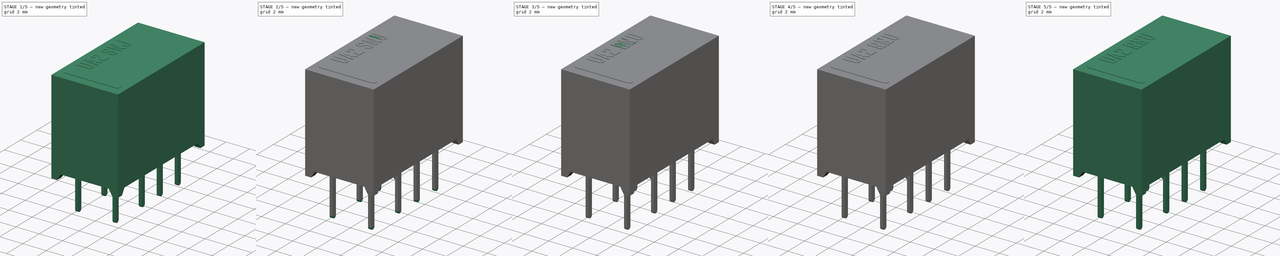
[diagram: build sequence overview — one tinted view per stage of 5, left to right]
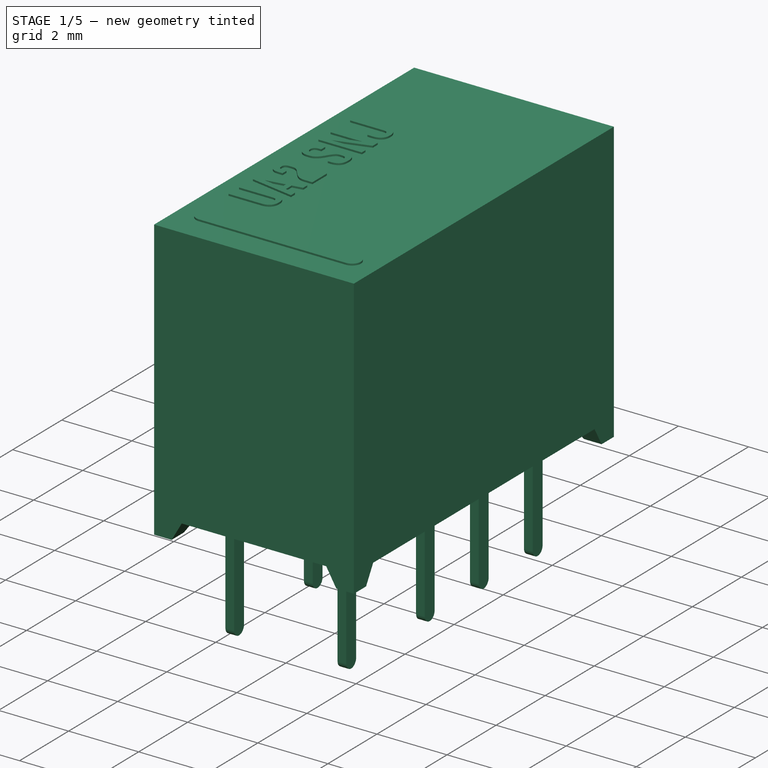
[diagram: stage 1 of 5 — iso view after this stage's code; geometry added in this stage tinted green]
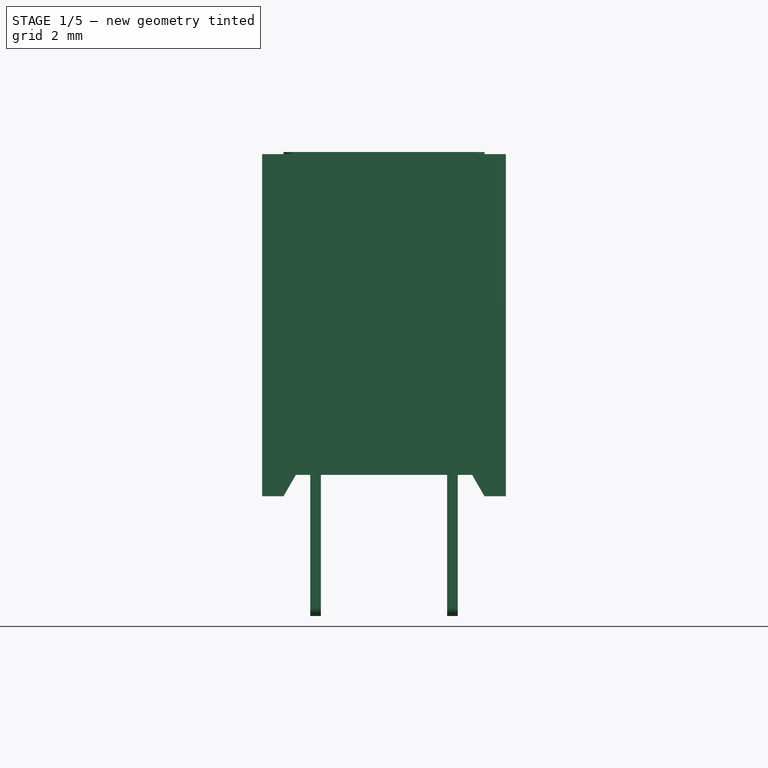
[diagram: stage 1 of 5 — front view after this stage's code; geometry added in this stage tinted green]
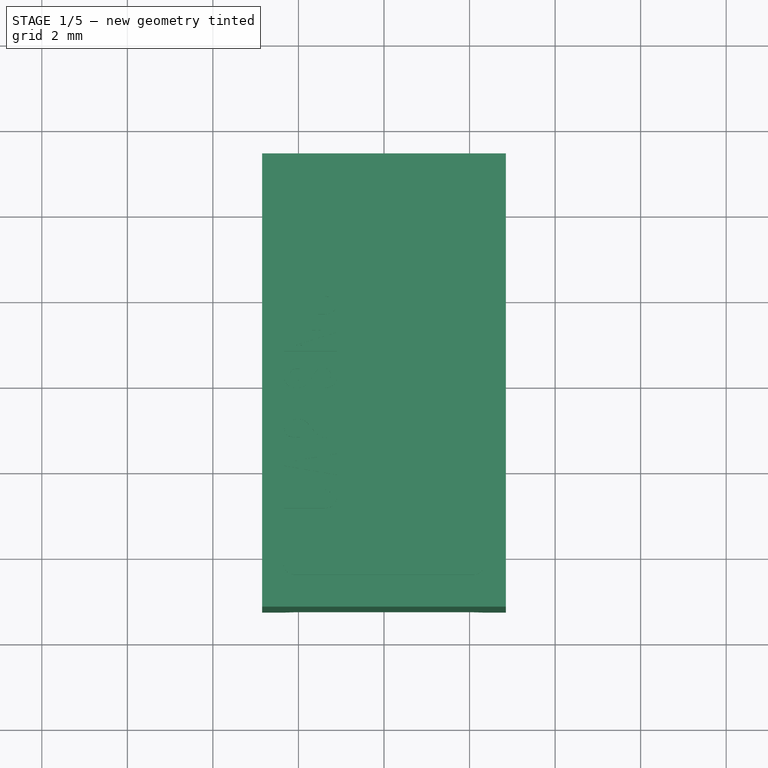
[diagram: stage 1 of 5 — top view after this stage's code; geometry added in this stage tinted green]
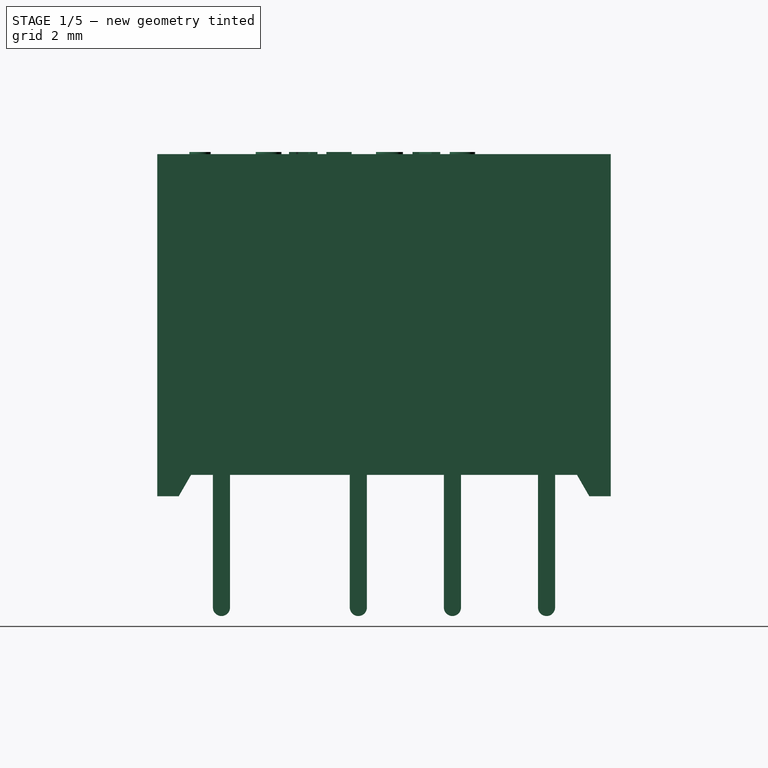
[diagram: stage 1 of 5 — right view after this stage's code; geometry added in this stage tinted green]
FCSTD DOCUMENT  (FreeCAD 0.19R16945 (Git))
Label: Kemet UA2 Series
License: All rights reserved
LicenseURL: http://en.wikipedia.org/wiki/All_rights_reserved
objects: Sketcher::SketchObject×35, PartDesign::Pad×25, PartDesign::Body×25, PartDesign::FeatureBase×20, PartDesign::Pocket×15, PartDesign::Mirrored×10, Part::FeaturePython×10, PartDesign::MultiTransform×5, Part::Part2DObjectPython×5, Part::MultiFuse×5, App::Part×5
note: 195 computed .brp shape members not serialized (recipe doc carries the construction recipe); baked Part::Feature solids carry a one-line shape summary decoded from their .brp

FEATURE [PartDesign::Body] Body017  label="UA2-SNU_Body"
  Group = -> [Sketch036,Pad024,Sketch033,Pocket013,Sketch037,Pocket015,ShapeString003,Sketch039,Pocket014,MultiTransform003,Mirrored006,Mirrored007,Sketch038,Pad026,Sketch035,Pad027,Pad025]
  Origin = -> Origin021
  Tip = -> Pad027
FEATURE [App::Part] Part003  label="UA2-SNU"
  Group = -> [Body017,Sketch034,Pad023,Body019,Body018,Body015,Body016,Array006,Array007,Fusion003]
  Origin = -> Origin019
FEATURE [PartDesign::Mirrored] Mirrored008
  MirrorPlane = -> XZ_Plane024
FEATURE [PartDesign::Mirrored] Mirrored009
  MirrorPlane = -> YZ_Plane025
FEATURE [Sketcher::SketchObject] Sketch040
  MapMode = 5
  Support = -> [XY_Plane027]
  sketch-geometry (4):
    g0: LineSegment StartX=2.85 StartY=-5.3 StartZ=0 EndX=-2.85 EndY=-5.3 EndZ=0
    g1: LineSegment StartX=-2.85 StartY=-5.3 StartZ=0 EndX=-2.85 EndY=5.3 EndZ=0
    g2: LineSegment StartX=-2.85 StartY=5.3 StartZ=0 EndX=2.85 EndY=5.3 EndZ=0
    g3: LineSegment StartX=2.85 StartY=5.3 StartZ=0 EndX=2.85 EndY=-5.3 EndZ=0
  constraints (10):
    c: Coincident(g0,g1)
    c: Coincident(g1,g2)
    c: Coincident(g2,g3)
    c: Coincident(g3,g0)
    c: Horizontal(g0)
    c: Vertical(g1)
    c: Symmetric(g1,g2,g-2)
    c: Symmetric(g2,g0,g-1)
    c: DistanceX(g2,g2) = 5.7
    c: DistanceY(g3,g3) = 10.6
FEATURE [PartDesign::Pad] Pad030  label="MainPad004"
  Length = 8
  Length2 = 100
  Profile = -> Sketch040
  Type = 0
FEATURE [Sketcher::SketchObject] Sketch042
  ExternalGeometry = -> [Pad030]
  MapMode = 5
  Placement = pos=(-2.85,0,0) rot=(0.57735,-0.57735,-0.57735;2.0944rad)
  Support = -> [Pad030]
  sketch-geometry (4):
    g0: LineSegment StartX=-4.8 StartY=0 StartZ=0 EndX=-4.51132 EndY=0.5 EndZ=0
    g1: LineSegment StartX=-4.51132 StartY=0.5 StartZ=0 EndX=4.51132 EndY=0.5 EndZ=0
    g2: LineSegment StartX=4.51132 StartY=0.5 StartZ=0 EndX=4.8 EndY=0 EndZ=0
    g3: LineSegment StartX=-4.8 StartY=0 StartZ=0 EndX=4.8 EndY=0 EndZ=0
  constraints (11):
    c: PointOnObject(g0,g-1)
    c: Coincident(g0,g1)
    c: Horizontal(g1)
    c: Coincident(g1,g2)
    c: Coincident(g3,g0)
    c: Coincident(g3,g2)
    c: DistanceY(g0,g0) = 0.5
    c: DistanceX(g-3,g0) = 0.5
    c: Symmetric(g2,g0,g-2)
    c: Angle(g3,g0) = 1.0472
    c: Equal(g2,g0)
FEATURE [PartDesign::Pocket] Pocket018  label="BottomPocket004"
  BaseFeature = -> Pad030
  Length = 5
  Length2 = 100
  Profile = -> Sketch042
  Refine = true
  Type = 1
FEATURE [Sketcher::SketchObject] Sketch043
  AttachmentOffset = pos=(0,0,2.54) rot=(0,0,1;0rad)
  MapMode = 5
  Placement = pos=(1.6,-1e-15,1e-15) rot=(0.57735,0.57735,0.57735;2.0944rad)
  sketch-geometry (6):
    g0: ArcOfCircle CenterX=0 CenterY=-2.6 CenterZ=0 NormalX=0 NormalY=0 NormalZ=1 AngleXU=0 Radius=0.2 StartAngle=3.14159 EndAngle=6.28319
    g1: LineSegment StartX=-0.2 StartY=-2.6 StartZ=0 EndX=-0.2 EndY=0.5 EndZ=0
    g2: LineSegment StartX=-0.2 StartY=0.5 StartZ=0 EndX=0.2 EndY=0.5 EndZ=0
    g3: LineSegment StartX=0.2 StartY=0.5 StartZ=0 EndX=0.2 EndY=-2.6 EndZ=0
    g4: GeomPoint X=-0.2 Y=0 Z=0
    g5: GeomPoint X=0 Y=-2.8 Z=0
  constraints (16):
    c: Tangent(g0,g1) = 1.5708
    c: Coincident(g1,g2)
    c: Coincident(g2,g3)
    c: Coincident(g3,g0)
    c: Vertical(g3)
    c: Equal(g3,g1)
    c: Vertical(g1)
    c: Horizontal(g2)
    c: PointOnObject(g4,g1)
    c: PointOnObject(g4,g-1)
    c: DistanceY(g4,g1) = 0.5
    c: DistanceX(g0,g0) = 0.4
    c: PointOnObject(g5,g0)
    c: Vertical(g5,g0)
    c: DistanceY(g5,g-1) = 2.8
    c: PointOnObject(g0,g-2)
FEATURE [PartDesign::Pad] Pad029
  Length = 0.25
  Length2 = 100
  Midplane = true
  Placement = pos=(1.6,-1e-15,1e-15) rot=(0.57735,0.57735,0.57735;2.0944rad)
  Profile = -> Sketch043
  Reversed = true
  Type = 0
FEATURE [PartDesign::FeatureBase] Clone016
  BaseFeature = -> Pad029
  Placement = pos=(1.6,-1e-15,1e-15) rot=(0.57735,0.57735,0.57735;2.0944rad)
FEATURE [PartDesign::Body] Body020
  BaseFeature = -> Pad029
  Group = -> [Clone016]
  Origin = -> Origin025
  Placement = pos=(0,-3.8,0) rot=(0,0,1;0rad)
  Tip = -> Clone016
FEATURE [PartDesign::FeatureBase] Clone018
  BaseFeature = -> Body020
  Placement = pos=(0,-3.8,0) rot=(0,0,1;0rad)
FEATURE [PartDesign::FeatureBase] Clone019
  BaseFeature = -> Body020
  Placement = pos=(0,-3.8,0) rot=(0,0,1;0rad)
FEATURE [PartDesign::Body] Body022
  BaseFeature = -> Body020
  Group = -> [Clone018]
  Origin = -> Origin029
  Placement = pos=(0,3.2,0) rot=(0,0,1;0rad)
  Tip = -> Clone018
FEATURE [PartDesign::Body] Body023
  BaseFeature = -> Body020
  Group = -> [Clone019]
  Origin = -> Origin028
  Placement = pos=(-3.2,0,0) rot=(0,0,1;0rad)
  Tip = -> Clone019
FEATURE [PartDesign::FeatureBase] Clone017
  BaseFeature = -> Body023
  Placement = pos=(-3.2,0,0) rot=(0,0,1;0rad)
FEATURE [PartDesign::Body] Body021
  BaseFeature = -> Body023
  Group = -> [Clone017]
  Origin = -> Origin026
  Placement = pos=(0,3.2,0) rot=(0,0,1;0rad)
  Tip = -> Clone017
FEATURE [Part::FeaturePython] Array008  # Draft array (typed FeaturePython)
  Angle = 360
  ArrayType = 0
  Axis = (0,0,1)
  Base = -> Body021
  Center = (0,0,0)
  Fuse = false
  IntervalAxis = (0,0,0)
  IntervalX = (1,0,0)
  IntervalY = (0,2.2,0)
  IntervalZ = (0,0,1)
  NumberPolar = 1
  NumberX = 1
  NumberY = 3
  NumberZ = 1
FEATURE [Part::FeaturePython] Array009  # Draft array (typed FeaturePython)
  Angle = 360
  ArrayType = 0
  Axis = (0,0,1)
  Base = -> Body022
  Center = (0,0,0)
  Fuse = false
  IntervalAxis = (0,0,0)
  IntervalX = (1,0,0)
  IntervalY = (0,2.2,0)
  IntervalZ = (0,0,1)
  NumberPolar = 1
  NumberX = 1
  NumberY = 3
  NumberZ = 1
FEATURE [Part::MultiFuse] Fusion004  label="UA2-SNJ_Pads"
  Shapes = -> [Array009,Array008,Body020,Body023]
FEATURE [Sketcher::SketchObject] Sketch045
  ExternalGeometry = -> [Pocket018]
  MapMode = 5
  Placement = pos=(0,-5.3,0) rot=(1,0,0;1.5708rad)
  Support = -> [Pocket018]
  sketch-geometry (4):
    g0: LineSegment StartX=-2.35 StartY=0 StartZ=0 EndX=-2.06132 EndY=0.5 EndZ=0
    g1: LineSegment StartX=-2.06132 StartY=0.5 StartZ=0 EndX=2.06132 EndY=0.5 EndZ=0
    g2: LineSegment StartX=2.06132 StartY=0.5 StartZ=0 EndX=2.35 EndY=0 EndZ=0
    g3: LineSegment StartX=2.35 StartY=0 StartZ=0 EndX=-2.35 EndY=0 EndZ=0
  constraints (11):
    c: PointOnObject(g0,g-1)
    c: Coincident(g0,g1)
    c: Coincident(g1,g2)
    c: Coincident(g2,g3)
    c: Coincident(g3,g0)
    c: Symmetric(g1,g0,g-2)
    c: Symmetric(g0,g2,g-2)
    c: DistanceX(g-3,g0) = 0.5
    c: Angle(g3,g0) = 1.0472
    c: Equal(g2,g0)
    c: DistanceY(g0,g0) = 0.5
FEATURE [PartDesign::Pocket] Pocket016  label="BottomSidePocket004"
  BaseFeature = -> Pocket018
  Length = 5
  Length2 = 100
  Profile = -> Sketch045
  Refine = true
  Type = 1
FEATURE [Sketcher::SketchObject] Sketch046
  ExternalGeometry = -> [Pocket016,Sketch045]
  MapMode = 5
  Placement = pos=(0,0,0.5) rot=(1,0,0;3.14159rad)
  Support = -> [Pocket016]
  sketch-geometry (6):
    g0: LineSegment StartX=0 StartY=0 StartZ=0 EndX=-2.65 EndY=0 EndZ=0
    g1: LineSegment StartX=-2.65 StartY=0 StartZ=0 EndX=-2.65 EndY=4.31132 EndZ=0
    g2: LineSegment StartX=-2.65 StartY=4.31132 StartZ=0 EndX=-1.86132 EndY=4.31132 EndZ=0
    g3: LineSegment StartX=-1.86132 StartY=4.31132 StartZ=0 EndX=-1.86132 EndY=5.1 EndZ=0
    g4: LineSegment StartX=-1.86132 StartY=5.1 StartZ=0 EndX=0 EndY=5.1 EndZ=0
    g5: LineSegment StartX=0 StartY=5.1 StartZ=0 EndX=0 EndY=0 EndZ=0
  constraints (17):
    c: Horizontal(g0)
    c: Coincident(g0,g1)
    c: Vertical(g1)
    c: Coincident(g1,g2)
    c: Coincident(g2,g3)
    c: Vertical(g3)
    c: Coincident(g3,g4)
    c: Horizontal(g4)
    c: Coincident(g4,g5)
    c: Coincident(g5,g0)
    c: Vertical(g5)
    c: Horizontal(g2)
    c: Coincident(g0,g-1)
    c: DistanceX(g-4,g0) = 0.2
    c: DistanceY(g4,g-6) = 0.2
    c: DistanceX(g-5,g3) = 0.2
    c: DistanceY(g1,g-4) = 0.2
FEATURE [PartDesign::Pocket] Pocket017
  BaseFeature = -> Pocket016
  Length = 0.1
  Length2 = 100
  Profile = -> Sketch046
  Type = 0
FEATURE [PartDesign::MultiTransform] MultiTransform004
  BaseFeature = -> Pocket017
  Originals = -> [Pocket017]
  Refine = true
  Transformations = -> [Mirrored009,Mirrored008]
FEATURE [Sketcher::SketchObject] Sketch041
  MapMode = 5
  Placement = pos=(-1e-16,-1e-16,0.6) rot=(1,0,0;3.14159rad)
  Support = -> [MultiTransform004]
  sketch-geometry (8):
    g0: LineSegment StartX=-1.13646 StartY=2.94894 StartZ=0 EndX=1.09204 EndY=2.88853 EndZ=0
    g1: LineSegment StartX=1.48768 StartY=2.48729 StartZ=0 EndX=1.5531 EndY=-2.52307 EndZ=0
    g2: LineSegment StartX=1.14644 StartY=-2.93509 StartZ=0 EndX=-1.14748 EndY=-2.93509 EndZ=0
    g3: LineSegment StartX=-1.55418 StartY=-2.52838 StartZ=0 EndX=-1.55418 EndY=2.54239 EndZ=0
    g4: ArcOfCircle CenterX=1.08102 CenterY=2.48198 CenterZ=0 NormalX=0 NormalY=0 NormalZ=1 AngleXU=0 Radius=0.406703 StartAngle=0.013056 EndAngle=1.54369
    g5: ArcOfCircle CenterX=-1.14748 CenterY=2.54239 CenterZ=0 NormalX=0 NormalY=0 NormalZ=1 AngleXU=0 Radius=0.406703 StartAngle=1.54369 EndAngle=3.14159
    g6: ArcOfCircle CenterX=-1.14748 CenterY=-2.52838 CenterZ=0 NormalX=0 NormalY=0 NormalZ=1 AngleXU=0 Radius=0.406703 StartAngle=3.14159 EndAngle=4.71239
    g7: ArcOfCircle CenterX=1.14644 CenterY=-2.52838 CenterZ=0 NormalX=0 NormalY=0 NormalZ=1 AngleXU=0 Radius=0.406703 StartAngle=4.71239 EndAngle=6.29624
  constraints (13):
    c: Horizontal(g2)
    c: Vertical(g3)
    c: Tangent(g0,g4) = 1.5708
    c: Tangent(g1,g4) = 1.5708
    c: Tangent(g0,g5) = 1.5708
    c: Tangent(g3,g5) = 1.5708
    c: Tangent(g2,g6) = 1.5708
    c: Tangent(g3,g6) = 1.5708
    c: Tangent(g1,g7) = 1.5708
    c: Tangent(g2,g7) = 1.5708
    c: Equal(g4,g5)
    c: Equal(g5,g6)
    c: Equal(g6,g7)
FEATURE [PartDesign::Pad] Pad031
  BaseFeature = -> MultiTransform004
  Length = 0.05
  Length2 = 100
  Profile = -> Sketch041
  Type = 0
FEATURE [Sketcher::SketchObject] Sketch044
  ExternalGeometry = -> [Pad031]
  MapMode = 5
  Placement = pos=(0,0,8) rot=(0,0,1;0rad)
  Support = -> [Pad031]
  sketch-geometry (4):
    g0: ArcOfCircle CenterX=-2.1 CenterY=-4.3 CenterZ=0 NormalX=0 NormalY=0 NormalZ=1 AngleXU=0 Radius=0.25 StartAngle=1.5708 EndAngle=4.71239
    g1: ArcOfCircle CenterX=2.1 CenterY=-4.3 CenterZ=0 NormalX=0 NormalY=0 NormalZ=1 AngleXU=0 Radius=0.25 StartAngle=4.71239 EndAngle=7.85398
    g2: LineSegment StartX=-2.1 StartY=-4.55 StartZ=0 EndX=2.1 EndY=-4.55 EndZ=0
    g3: LineSegment StartX=-2.1 StartY=-4.05 StartZ=0 EndX=2.1 EndY=-4.05 EndZ=0
  constraints (9):
    c: Tangent(g0,g3) = 1.5708
    c: Tangent(g0,g2) = -1.5708
    c: Tangent(g2,g1) = -1.5708
    c: Tangent(g3,g1) = 1.5708
    c: Horizontal(g2)
    c: Symmetric(g0,g1,g-2)
    c: DistanceY(g1,g1) = 0.5
    c: DistanceY(g-3,g1) = 1
    c: DistanceX(g1,g-3) = 0.75
FEATURE [PartDesign::Pad] Pad032
  BaseFeature = -> Pad031
  Length = 0.05
  Length2 = 100
  Profile = -> Sketch044
  Type = 0
FEATURE [Part::Part2DObjectPython] ShapeString004  # Draft 2D object (typed FeaturePython)
  AttachmentOffset = pos=(-1,-1,0) rot=(0,0,1;-1.5708rad)
  FontFile = <userpath>/Desktop/GitHub/freecad-projects/00-fonts/coolvetica condensed rg.ttf
  MapMode = 6
  Placement = pos=(-1.1,-3.05,8) rot=(0,0,-1;4.71239rad)
  Size = 0.75
  String = UA2 SNJ
  Support = -> [Pad032]
  Tracking = 0.125
FEATURE [PartDesign::Pad] Pad028  label="ShapeStringPad004"
  BaseFeature = -> Pad032
  Length = 0.05
  Length2 = 100
  Profile = -> ShapeString004
  Type = 0
FEATURE [PartDesign::Body] Body024  label="UA2-SNJ_Body"
  Group = -> [Sketch040,Pad030,Sketch042,Pocket018,Sketch045,Pocket016,ShapeString004,Sketch046,Pocket017,MultiTransform004,Mirrored009,Mirrored008,Sketch041,Pad031,Sketch044,Pad032,Pad028]
  Origin = -> Origin027
  Tip = -> Pad032
FEATURE [App::Part] Part004  label="UA2-SNJ"
  Group = -> [Body024,Sketch043,Pad029,Body020,Body023,Body022,Body021,Array009,Array008,Fusion004]
  Origin = -> Origin024
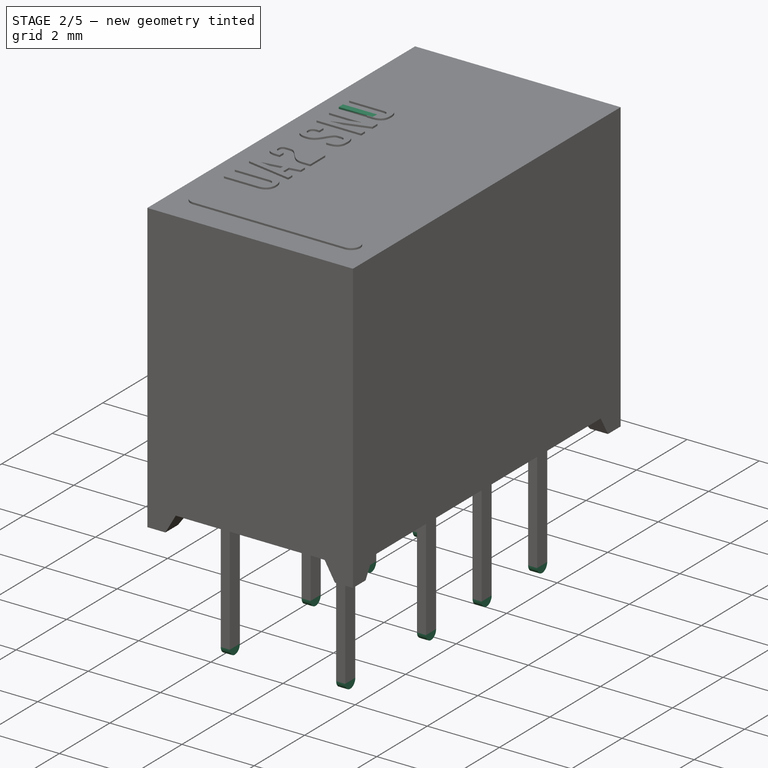
[diagram: stage 2 of 5 — iso view after this stage's code; geometry added in this stage tinted green]
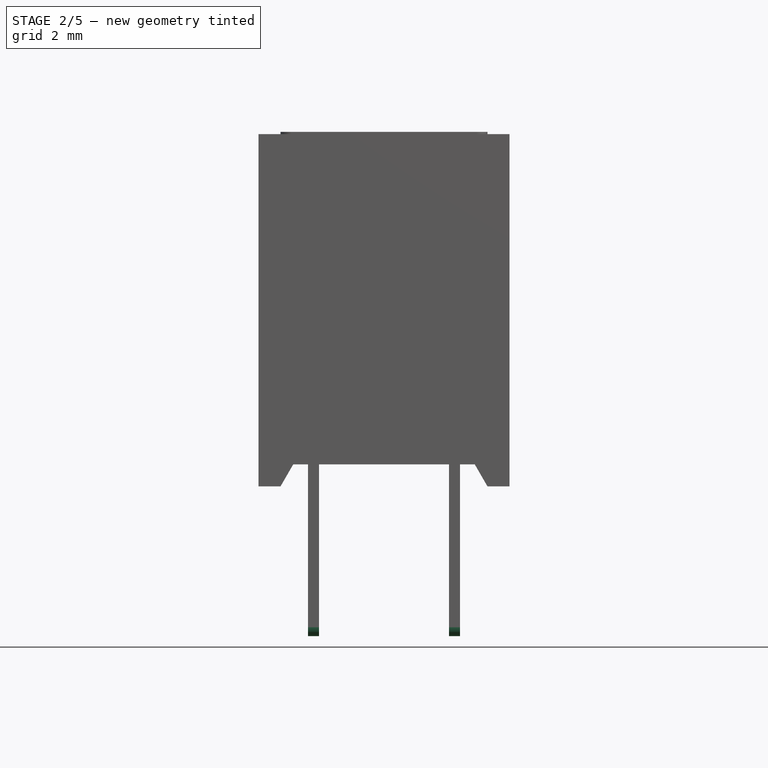
[diagram: stage 2 of 5 — front view after this stage's code; geometry added in this stage tinted green]
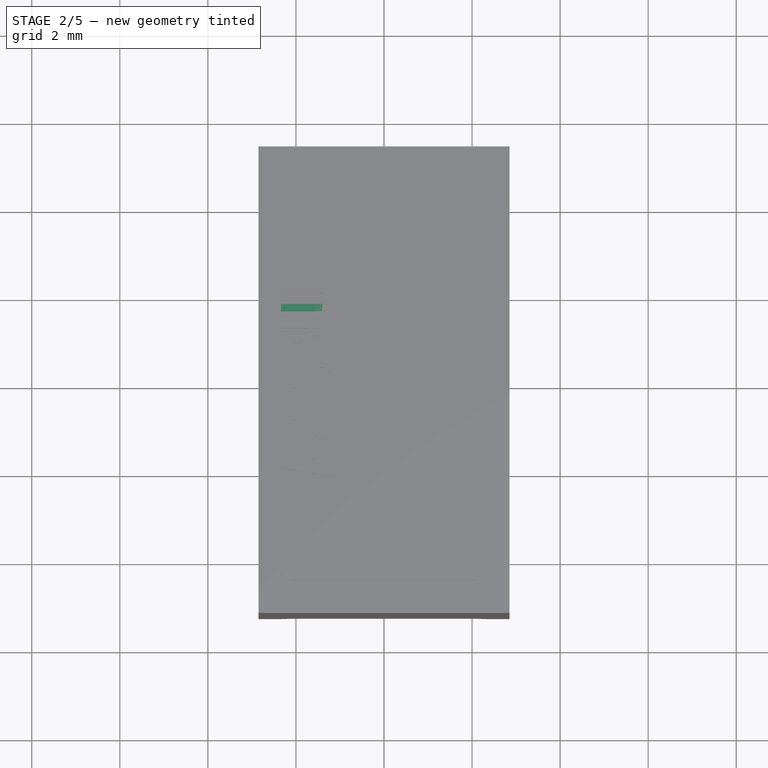
[diagram: stage 2 of 5 — top view after this stage's code; geometry added in this stage tinted green]
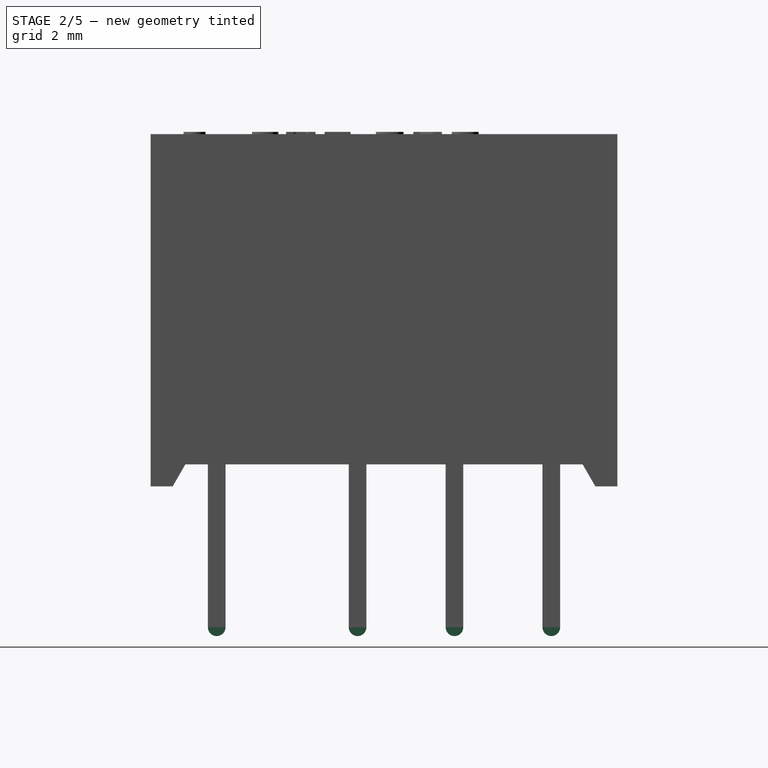
[diagram: stage 2 of 5 — right view after this stage's code; geometry added in this stage tinted green]
FEATURE [PartDesign::Body] Body012  label="UA2-NJ_Body"
  Group = -> [Sketch029,Pad019,Sketch026,Pocket010,Sketch030,Pocket012,ShapeString002,Sketch032,Pocket011,MultiTransform002,Mirrored004,Mirrored005,Sketch031,Pad021,Sketch028,Pad022,Pad020]
  Origin = -> Origin015
  Tip = -> Pad022
FEATURE [App::Part] Part002  label="UA2-NJ"
  Group = -> [Body012,Sketch027,Pad018,Body014,Body013,Body010,Body011,Array004,Array005,Fusion002]
  Origin = -> Origin013
FEATURE [PartDesign::Mirrored] Mirrored006
  MirrorPlane = -> YZ_Plane022
FEATURE [PartDesign::Mirrored] Mirrored007
  MirrorPlane = -> XZ_Plane022
FEATURE [Sketcher::SketchObject] Sketch034
  AttachmentOffset = pos=(0,0,2.54) rot=(0,0,1;0rad)
  MapMode = 5
  Placement = pos=(1.6,-1e-15,1e-15) rot=(0.57735,0.57735,0.57735;2.0944rad)
  sketch-geometry (6):
    g0: ArcOfCircle CenterX=0 CenterY=-3.2 CenterZ=0 NormalX=0 NormalY=0 NormalZ=1 AngleXU=0 Radius=0.2 StartAngle=3.14159 EndAngle=6.28319
    g1: LineSegment StartX=-0.2 StartY=-3.2 StartZ=0 EndX=-0.2 EndY=0.5 EndZ=0
    g2: LineSegment StartX=-0.2 StartY=0.5 StartZ=0 EndX=0.2 EndY=0.5 EndZ=0
    g3: LineSegment StartX=0.2 StartY=0.5 StartZ=0 EndX=0.2 EndY=-3.2 EndZ=0
    g4: GeomPoint X=-0.2 Y=0 Z=0
    g5: GeomPoint X=0 Y=-3.4 Z=0
  constraints (16):
    c: Tangent(g0,g1) = 1.5708
    c: Coincident(g1,g2)
    c: Coincident(g2,g3)
    c: Coincident(g3,g0)
    c: Vertical(g3)
    c: Equal(g3,g1)
    c: Vertical(g1)
    c: Horizontal(g2)
    c: PointOnObject(g4,g1)
    c: PointOnObject(g4,g-1)
    c: DistanceY(g4,g1) = 0.5
    c: DistanceX(g0,g0) = 0.4
    c: PointOnObject(g5,g0)
    c: Vertical(g5,g0)
    c: DistanceY(g5,g-1) = 3.4
    c: PointOnObject(g0,g-2)
FEATURE [PartDesign::Pad] Pad023
  Length = 0.25
  Length2 = 100
  Midplane = true
  Placement = pos=(1.6,-1e-15,1e-15) rot=(0.57735,0.57735,0.57735;2.0944rad)
  Profile = -> Sketch034
  Reversed = true
  Type = 0
FEATURE [PartDesign::FeatureBase] Clone013
  BaseFeature = -> Pad023
  Placement = pos=(1.6,-1e-15,1e-15) rot=(0.57735,0.57735,0.57735;2.0944rad)
FEATURE [PartDesign::Body] Body019
  BaseFeature = -> Pad023
  Group = -> [Clone013]
  Origin = -> Origin018
  Placement = pos=(0,-3.8,0) rot=(0,0,1;0rad)
  Tip = -> Clone013
FEATURE [PartDesign::FeatureBase] Clone012
  BaseFeature = -> Body019
  Placement = pos=(0,-3.8,0) rot=(0,0,1;0rad)
FEATURE [PartDesign::Body] Body015
  BaseFeature = -> Body019
  Group = -> [Clone012]
  Origin = -> Origin020
  Placement = pos=(0,3.2,0) rot=(0,0,1;0rad)
  Tip = -> Clone012
FEATURE [Part::FeaturePython] Array006  # Draft array (typed FeaturePython)
  Angle = 360
  ArrayType = 0
  Axis = (0,0,1)
  Base = -> Body015
  Center = (0,0,0)
  Fuse = false
  IntervalAxis = (0,0,0)
  IntervalX = (1,0,0)
  IntervalY = (0,2.2,0)
  IntervalZ = (0,0,1)
  NumberPolar = 1
  NumberX = 1
  NumberY = 3
  NumberZ = 1
FEATURE [PartDesign::FeatureBase] Clone014
  BaseFeature = -> Body019
  Placement = pos=(0,-3.8,0) rot=(0,0,1;0rad)
FEATURE [PartDesign::Body] Body018
  BaseFeature = -> Body019
  Group = -> [Clone014]
  Origin = -> Origin022
  Placement = pos=(-3.2,0,0) rot=(0,0,1;0rad)
  Tip = -> Clone014
FEATURE [PartDesign::FeatureBase] Clone015
  BaseFeature = -> Body018
  Placement = pos=(-3.2,0,0) rot=(0,0,1;0rad)
FEATURE [PartDesign::Body] Body016
  BaseFeature = -> Body018
  Group = -> [Clone015]
  Origin = -> Origin023
  Placement = pos=(0,3.2,0) rot=(0,0,1;0rad)
  Tip = -> Clone015
FEATURE [Part::FeaturePython] Array007  # Draft array (typed FeaturePython)
  Angle = 360
  ArrayType = 0
  Axis = (0,0,1)
  Base = -> Body016
  Center = (0,0,0)
  Fuse = false
  IntervalAxis = (0,0,0)
  IntervalX = (1,0,0)
  IntervalY = (0,2.2,0)
  IntervalZ = (0,0,1)
  NumberPolar = 1
  NumberX = 1
  NumberY = 3
  NumberZ = 1
FEATURE [Part::MultiFuse] Fusion003  label="UA2-SNU_Pads"
  Shapes = -> [Array006,Array007,Body019,Body018]
FEATURE [Sketcher::SketchObject] Sketch036
  MapMode = 5
  Support = -> [XY_Plane022]
  sketch-geometry (4):
    g0: LineSegment StartX=2.85 StartY=-5.3 StartZ=0 EndX=-2.85 EndY=-5.3 EndZ=0
    g1: LineSegment StartX=-2.85 StartY=-5.3 StartZ=0 EndX=-2.85 EndY=5.3 EndZ=0
    g2: LineSegment StartX=-2.85 StartY=5.3 StartZ=0 EndX=2.85 EndY=5.3 EndZ=0
    g3: LineSegment StartX=2.85 StartY=5.3 StartZ=0 EndX=2.85 EndY=-5.3 EndZ=0
  constraints (10):
    c: Coincident(g0,g1)
    c: Coincident(g1,g2)
    c: Coincident(g2,g3)
    c: Coincident(g3,g0)
    c: Horizontal(g0)
    c: Vertical(g1)
    c: Symmetric(g1,g2,g-2)
    c: Symmetric(g2,g0,g-1)
    c: DistanceX(g2,g2) = 5.7
    c: DistanceY(g3,g3) = 10.6
FEATURE [PartDesign::Pad] Pad024  label="MainPad003"
  Length = 8
  Length2 = 100
  Profile = -> Sketch036
  Type = 0
FEATURE [Sketcher::SketchObject] Sketch033
  ExternalGeometry = -> [Pad024]
  MapMode = 5
  Placement = pos=(-2.85,0,0) rot=(0.57735,-0.57735,-0.57735;2.0944rad)
  Support = -> [Pad024]
  sketch-geometry (4):
    g0: LineSegment StartX=-4.8 StartY=0 StartZ=0 EndX=-4.51132 EndY=0.5 EndZ=0
    g1: LineSegment StartX=-4.51132 StartY=0.5 StartZ=0 EndX=4.51132 EndY=0.5 EndZ=0
    g2: LineSegment StartX=4.51132 StartY=0.5 StartZ=0 EndX=4.8 EndY=0 EndZ=0
    g3: LineSegment StartX=-4.8 StartY=0 StartZ=0 EndX=4.8 EndY=0 EndZ=0
  constraints (11):
    c: PointOnObject(g0,g-1)
    c: Coincident(g0,g1)
    c: Horizontal(g1)
    c: Coincident(g1,g2)
    c: Coincident(g3,g0)
    c: Coincident(g3,g2)
    c: DistanceY(g0,g0) = 0.5
    c: DistanceX(g-3,g0) = 0.5
    c: Symmetric(g2,g0,g-2)
    c: Angle(g3,g0) = 1.0472
    c: Equal(g2,g0)
FEATURE [PartDesign::Pocket] Pocket013  label="BottomPocket003"
  BaseFeature = -> Pad024
  Length = 5
  Length2 = 100
  Profile = -> Sketch033
  Refine = true
  Type = 1
FEATURE [Sketcher::SketchObject] Sketch037
  ExternalGeometry = -> [Pocket013]
  MapMode = 5
  Placement = pos=(0,-5.3,0) rot=(1,0,0;1.5708rad)
  Support = -> [Pocket013]
  sketch-geometry (4):
    g0: LineSegment StartX=-2.35 StartY=0 StartZ=0 EndX=-2.06132 EndY=0.5 EndZ=0
    g1: LineSegment StartX=-2.06132 StartY=0.5 StartZ=0 EndX=2.06132 EndY=0.5 EndZ=0
    g2: LineSegment StartX=2.06132 StartY=0.5 StartZ=0 EndX=2.35 EndY=0 EndZ=0
    g3: LineSegment StartX=2.35 StartY=0 StartZ=0 EndX=-2.35 EndY=0 EndZ=0
  constraints (11):
    c: PointOnObject(g0,g-1)
    c: Coincident(g0,g1)
    c: Coincident(g1,g2)
    c: Coincident(g2,g3)
    c: Coincident(g3,g0)
    c: Symmetric(g1,g0,g-2)
    c: Symmetric(g0,g2,g-2)
    c: DistanceX(g-3,g0) = 0.5
    c: Angle(g3,g0) = 1.0472
    c: Equal(g2,g0)
    c: DistanceY(g0,g0) = 0.5
FEATURE [PartDesign::Pocket] Pocket015  label="BottomSidePocket003"
  BaseFeature = -> Pocket013
  Length = 5
  Length2 = 100
  Profile = -> Sketch037
  Refine = true
  Type = 1
FEATURE [Sketcher::SketchObject] Sketch039
  ExternalGeometry = -> [Pocket015,Sketch037]
  MapMode = 5
  Placement = pos=(0,0,0.5) rot=(1,0,0;3.14159rad)
  Support = -> [Pocket015]
  sketch-geometry (6):
    g0: LineSegment StartX=0 StartY=0 StartZ=0 EndX=-2.65 EndY=0 EndZ=0
    g1: LineSegment StartX=-2.65 StartY=0 StartZ=0 EndX=-2.65 EndY=4.31132 EndZ=0
    g2: LineSegment StartX=-2.65 StartY=4.31132 StartZ=0 EndX=-1.86132 EndY=4.31132 EndZ=0
    g3: LineSegment StartX=-1.86132 StartY=4.31132 StartZ=0 EndX=-1.86132 EndY=5.1 EndZ=0
    g4: LineSegment StartX=-1.86132 StartY=5.1 StartZ=0 EndX=0 EndY=5.1 EndZ=0
    g5: LineSegment StartX=0 StartY=5.1 StartZ=0 EndX=0 EndY=0 EndZ=0
  constraints (17):
    c: Horizontal(g0)
    c: Coincident(g0,g1)
    c: Vertical(g1)
    c: Coincident(g1,g2)
    c: Coincident(g2,g3)
    c: Vertical(g3)
    c: Coincident(g3,g4)
    c: Horizontal(g4)
    c: Coincident(g4,g5)
    c: Coincident(g5,g0)
    c: Vertical(g5)
    c: Horizontal(g2)
    c: Coincident(g0,g-1)
    c: DistanceX(g-4,g0) = 0.2
    c: DistanceY(g4,g-6) = 0.2
    c: DistanceX(g-5,g3) = 0.2
    c: DistanceY(g1,g-4) = 0.2
FEATURE [PartDesign::Pocket] Pocket014
  BaseFeature = -> Pocket015
  Length = 0.1
  Length2 = 100
  Profile = -> Sketch039
  Type = 0
FEATURE [PartDesign::MultiTransform] MultiTransform003
  BaseFeature = -> Pocket014
  Originals = -> [Pocket014]
  Refine = true
  Transformations = -> [Mirrored006,Mirrored007]
FEATURE [Sketcher::SketchObject] Sketch038
  MapMode = 5
  Placement = pos=(-1e-16,-1e-16,0.6) rot=(1,0,0;3.14159rad)
  Support = -> [MultiTransform003]
  sketch-geometry (8):
    g0: LineSegment StartX=-1.13646 StartY=2.94894 StartZ=0 EndX=1.09204 EndY=2.88853 EndZ=0
    g1: LineSegment StartX=1.48768 StartY=2.48729 StartZ=0 EndX=1.5531 EndY=-2.52307 EndZ=0
    g2: LineSegment StartX=1.14644 StartY=-2.93509 StartZ=0 EndX=-1.14748 EndY=-2.93509 EndZ=0
    g3: LineSegment StartX=-1.55418 StartY=-2.52838 StartZ=0 EndX=-1.55418 EndY=2.54239 EndZ=0
    g4: ArcOfCircle CenterX=1.08102 CenterY=2.48198 CenterZ=0 NormalX=0 NormalY=0 NormalZ=1 AngleXU=0 Radius=0.406703 StartAngle=0.013056 EndAngle=1.54369
    g5: ArcOfCircle CenterX=-1.14748 CenterY=2.54239 CenterZ=0 NormalX=0 NormalY=0 NormalZ=1 AngleXU=0 Radius=0.406703 StartAngle=1.54369 EndAngle=3.14159
    g6: ArcOfCircle CenterX=-1.14748 CenterY=-2.52838 CenterZ=0 NormalX=0 NormalY=0 NormalZ=1 AngleXU=0 Radius=0.406703 StartAngle=3.14159 EndAngle=4.71239
    g7: ArcOfCircle CenterX=1.14644 CenterY=-2.52838 CenterZ=0 NormalX=0 NormalY=0 NormalZ=1 AngleXU=0 Radius=0.406703 StartAngle=4.71239 EndAngle=6.29624
  constraints (13):
    c: Horizontal(g2)
    c: Vertical(g3)
    c: Tangent(g0,g4) = 1.5708
    c: Tangent(g1,g4) = 1.5708
    c: Tangent(g0,g5) = 1.5708
    c: Tangent(g3,g5) = 1.5708
    c: Tangent(g2,g6) = 1.5708
    c: Tangent(g3,g6) = 1.5708
    c: Tangent(g1,g7) = 1.5708
    c: Tangent(g2,g7) = 1.5708
    c: Equal(g4,g5)
    c: Equal(g5,g6)
    c: Equal(g6,g7)
FEATURE [PartDesign::Pad] Pad026
  BaseFeature = -> MultiTransform003
  Length = 0.05
  Length2 = 100
  Profile = -> Sketch038
  Type = 0
FEATURE [Sketcher::SketchObject] Sketch035
  ExternalGeometry = -> [Pad026]
  MapMode = 5
  Placement = pos=(0,0,8) rot=(0,0,1;0rad)
  Support = -> [Pad026]
  sketch-geometry (4):
    g0: ArcOfCircle CenterX=-2.1 CenterY=-4.3 CenterZ=0 NormalX=0 NormalY=0 NormalZ=1 AngleXU=0 Radius=0.25 StartAngle=1.5708 EndAngle=4.71239
    g1: ArcOfCircle CenterX=2.1 CenterY=-4.3 CenterZ=0 NormalX=0 NormalY=0 NormalZ=1 AngleXU=0 Radius=0.25 StartAngle=4.71239 EndAngle=7.85398
    g2: LineSegment StartX=-2.1 StartY=-4.55 StartZ=0 EndX=2.1 EndY=-4.55 EndZ=0
    g3: LineSegment StartX=-2.1 StartY=-4.05 StartZ=0 EndX=2.1 EndY=-4.05 EndZ=0
  constraints (9):
    c: Tangent(g0,g3) = 1.5708
    c: Tangent(g0,g2) = -1.5708
    c: Tangent(g2,g1) = -1.5708
    c: Tangent(g3,g1) = 1.5708
    c: Horizontal(g2)
    c: Symmetric(g0,g1,g-2)
    c: DistanceY(g1,g1) = 0.5
    c: DistanceY(g-3,g1) = 1
    c: DistanceX(g1,g-3) = 0.75
FEATURE [PartDesign::Pad] Pad027
  BaseFeature = -> Pad026
  Length = 0.05
  Length2 = 100
  Profile = -> Sketch035
  Type = 0
FEATURE [Part::Part2DObjectPython] ShapeString003  # Draft 2D object (typed FeaturePython)
  AttachmentOffset = pos=(-1,-1,0) rot=(0,0,1;-1.5708rad)
  FontFile = <userpath>/Desktop/GitHub/freecad-projects/00-fonts/coolvetica condensed rg.ttf
  MapMode = 6
  Placement = pos=(-1.1,-3.05,8) rot=(0,0,-1;4.71239rad)
  Size = 0.75
  String = UA2 SNU
  Support = -> [Pad027]
  Tracking = 0.125
FEATURE [PartDesign::Pad] Pad025  label="ShapeStringPad003"
  BaseFeature = -> Pad027
  Length = 0.05
  Length2 = 100
  Profile = -> ShapeString003
  Type = 0
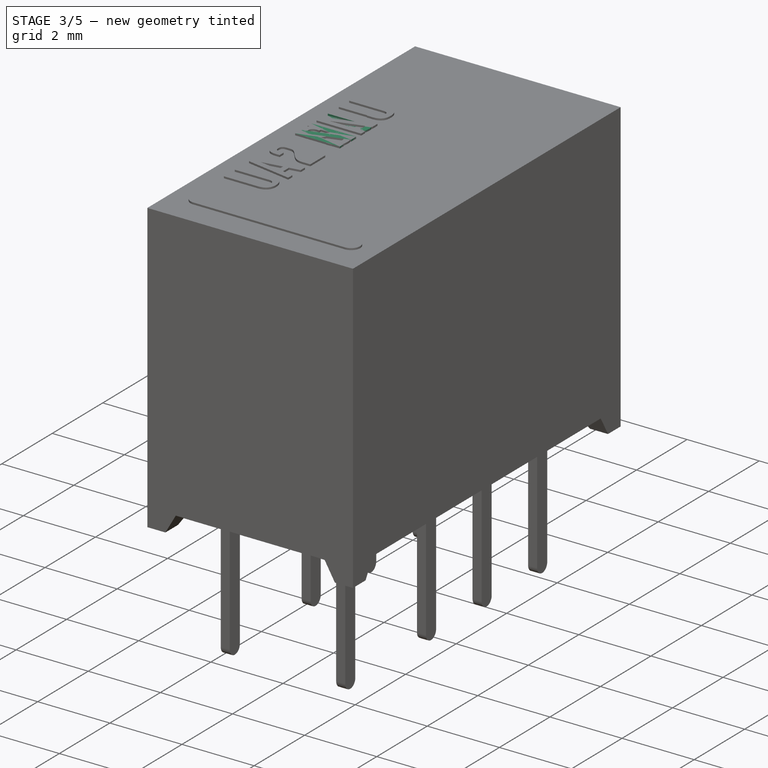
[diagram: stage 3 of 5 — iso view after this stage's code; geometry added in this stage tinted green]
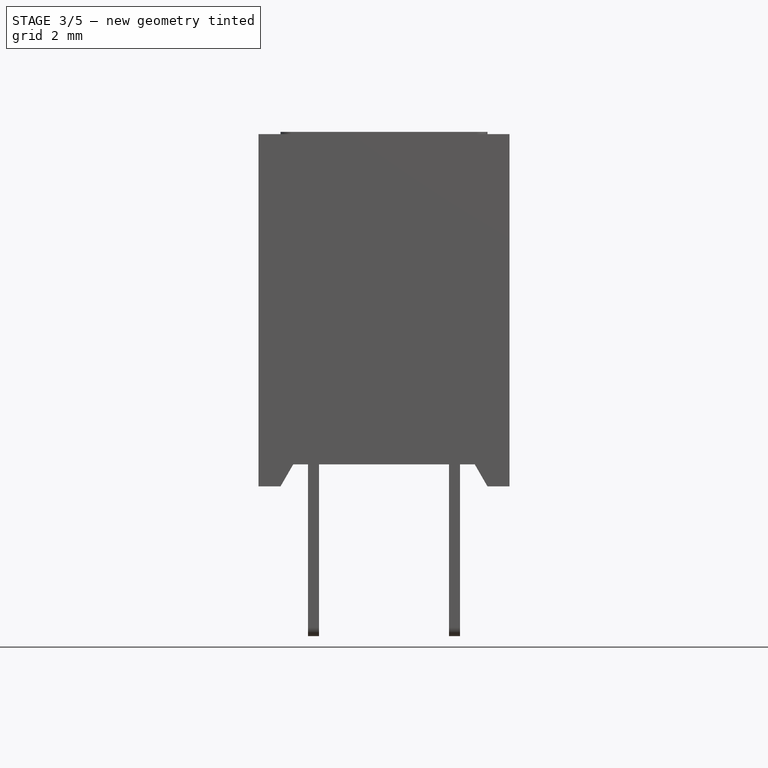
[diagram: stage 3 of 5 — front view after this stage's code; geometry added in this stage tinted green]
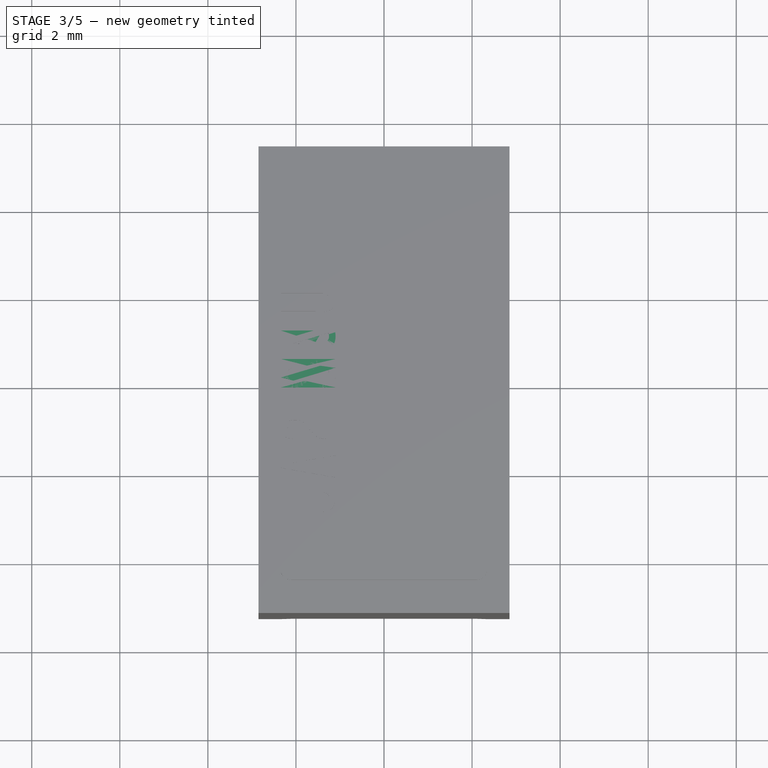
[diagram: stage 3 of 5 — top view after this stage's code; geometry added in this stage tinted green]
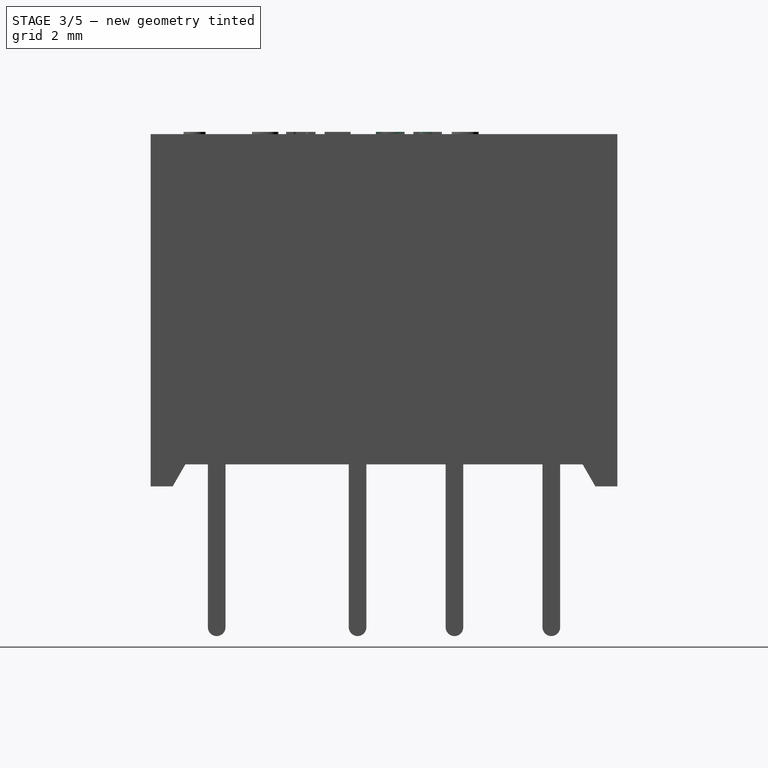
[diagram: stage 3 of 5 — right view after this stage's code; geometry added in this stage tinted green]
FEATURE [App::Part] Part001  label="UA2-NE"
  Group = -> [Body008,Sketch025,Pad014,Body007,Body009,Body006,Body005,Array002,Array003,Fusion001]
  Origin = -> Origin010
FEATURE [PartDesign::Mirrored] Mirrored004
  MirrorPlane = -> YZ_Plane016
FEATURE [PartDesign::Mirrored] Mirrored005
  MirrorPlane = -> XZ_Plane016
FEATURE [Sketcher::SketchObject] Sketch027
  AttachmentOffset = pos=(0,0,2.54) rot=(0,0,1;0rad)
  MapMode = 5
  Placement = pos=(1.6,-1e-15,1e-15) rot=(0.57735,0.57735,0.57735;2.0944rad)
  sketch-geometry (6):
    g0: ArcOfCircle CenterX=0 CenterY=-2.6 CenterZ=0 NormalX=0 NormalY=0 NormalZ=1 AngleXU=0 Radius=0.2 StartAngle=3.14159 EndAngle=6.28319
    g1: LineSegment StartX=-0.2 StartY=-2.6 StartZ=0 EndX=-0.2 EndY=0.5 EndZ=0
    g2: LineSegment StartX=-0.2 StartY=0.5 StartZ=0 EndX=0.2 EndY=0.5 EndZ=0
    g3: LineSegment StartX=0.2 StartY=0.5 StartZ=0 EndX=0.2 EndY=-2.6 EndZ=0
    g4: GeomPoint X=-0.2 Y=0 Z=0
    g5: GeomPoint X=0 Y=-2.8 Z=0
  constraints (16):
    c: Tangent(g0,g1) = 1.5708
    c: Coincident(g1,g2)
    c: Coincident(g2,g3)
    c: Coincident(g3,g0)
    c: Vertical(g3)
    c: Equal(g3,g1)
    c: Vertical(g1)
    c: Horizontal(g2)
    c: PointOnObject(g4,g1)
    c: PointOnObject(g4,g-1)
    c: DistanceY(g4,g1) = 0.5
    c: DistanceX(g0,g0) = 0.4
    c: PointOnObject(g5,g0)
    c: Vertical(g5,g0)
    c: DistanceY(g5,g-1) = 2.8
    c: PointOnObject(g0,g-2)
FEATURE [PartDesign::Pad] Pad018
  Length = 0.25
  Length2 = 100
  Midplane = true
  Placement = pos=(1.6,-1e-15,1e-15) rot=(0.57735,0.57735,0.57735;2.0944rad)
  Profile = -> Sketch027
  Reversed = true
  Type = 0
FEATURE [PartDesign::FeatureBase] Clone009
  BaseFeature = -> Pad018
  Placement = pos=(1.6,-1e-15,1e-15) rot=(0.57735,0.57735,0.57735;2.0944rad)
FEATURE [PartDesign::Body] Body014
  BaseFeature = -> Pad018
  Group = -> [Clone009]
  Origin = -> Origin012
  Placement = pos=(0,-3.8,0) rot=(0,0,1;0rad)
  Tip = -> Clone009
FEATURE [PartDesign::FeatureBase] Clone008
  BaseFeature = -> Body014
  Placement = pos=(0,-3.8,0) rot=(0,0,1;0rad)
FEATURE [PartDesign::Body] Body010
  BaseFeature = -> Body014
  Group = -> [Clone008]
  Origin = -> Origin014
  Placement = pos=(0,3.2,0) rot=(0,0,1;0rad)
  Tip = -> Clone008
FEATURE [Part::FeaturePython] Array004  # Draft array (typed FeaturePython)
  Angle = 360
  ArrayType = 0
  Axis = (0,0,1)
  Base = -> Body010
  Center = (0,0,0)
  Fuse = false
  IntervalAxis = (0,0,0)
  IntervalX = (1,0,0)
  IntervalY = (0,2.2,0)
  IntervalZ = (0,0,1)
  NumberPolar = 1
  NumberX = 1
  NumberY = 3
  NumberZ = 1
FEATURE [PartDesign::FeatureBase] Clone010
  BaseFeature = -> Body014
  Placement = pos=(0,-3.8,0) rot=(0,0,1;0rad)
FEATURE [PartDesign::Body] Body013
  BaseFeature = -> Body014
  Group = -> [Clone010]
  Origin = -> Origin016
  Placement = pos=(-3.2,0,0) rot=(0,0,1;0rad)
  Tip = -> Clone010
FEATURE [PartDesign::FeatureBase] Clone011
  BaseFeature = -> Body013
  Placement = pos=(-3.2,0,0) rot=(0,0,1;0rad)
FEATURE [PartDesign::Body] Body011
  BaseFeature = -> Body013
  Group = -> [Clone011]
  Origin = -> Origin017
  Placement = pos=(0,3.2,0) rot=(0,0,1;0rad)
  Tip = -> Clone011
FEATURE [Part::FeaturePython] Array005  # Draft array (typed FeaturePython)
  Angle = 360
  ArrayType = 0
  Axis = (0,0,1)
  Base = -> Body011
  Center = (0,0,0)
  Fuse = false
  IntervalAxis = (0,0,0)
  IntervalX = (1,0,0)
  IntervalY = (0,2.2,0)
  IntervalZ = (0,0,1)
  NumberPolar = 1
  NumberX = 1
  NumberY = 3
  NumberZ = 1
FEATURE [Part::MultiFuse] Fusion002  label="UA2-NJ_Pads"
  Shapes = -> [Array004,Array005,Body014,Body013]
FEATURE [Sketcher::SketchObject] Sketch029
  MapMode = 5
  Support = -> [XY_Plane016]
  sketch-geometry (4):
    g0: LineSegment StartX=2.85 StartY=-5.3 StartZ=0 EndX=-2.85 EndY=-5.3 EndZ=0
    g1: LineSegment StartX=-2.85 StartY=-5.3 StartZ=0 EndX=-2.85 EndY=5.3 EndZ=0
    g2: LineSegment StartX=-2.85 StartY=5.3 StartZ=0 EndX=2.85 EndY=5.3 EndZ=0
    g3: LineSegment StartX=2.85 StartY=5.3 StartZ=0 EndX=2.85 EndY=-5.3 EndZ=0
  constraints (10):
    c: Coincident(g0,g1)
    c: Coincident(g1,g2)
    c: Coincident(g2,g3)
    c: Coincident(g3,g0)
    c: Horizontal(g0)
    c: Vertical(g1)
    c: Symmetric(g1,g2,g-2)
    c: Symmetric(g2,g0,g-1)
    c: DistanceX(g2,g2) = 5.7
    c: DistanceY(g3,g3) = 10.6
FEATURE [PartDesign::Pad] Pad019  label="MainPad002"
  Length = 8
  Length2 = 100
  Profile = -> Sketch029
  Type = 0
FEATURE [Sketcher::SketchObject] Sketch026
  ExternalGeometry = -> [Pad019]
  MapMode = 5
  Placement = pos=(-2.85,0,0) rot=(0.57735,-0.57735,-0.57735;2.0944rad)
  Support = -> [Pad019]
  sketch-geometry (4):
    g0: LineSegment StartX=-4.8 StartY=0 StartZ=0 EndX=-4.51132 EndY=0.5 EndZ=0
    g1: LineSegment StartX=-4.51132 StartY=0.5 StartZ=0 EndX=4.51132 EndY=0.5 EndZ=0
    g2: LineSegment StartX=4.51132 StartY=0.5 StartZ=0 EndX=4.8 EndY=0 EndZ=0
    g3: LineSegment StartX=-4.8 StartY=0 StartZ=0 EndX=4.8 EndY=0 EndZ=0
  constraints (11):
    c: PointOnObject(g0,g-1)
    c: Coincident(g0,g1)
    c: Horizontal(g1)
    c: Coincident(g1,g2)
    c: Coincident(g3,g0)
    c: Coincident(g3,g2)
    c: DistanceY(g0,g0) = 0.5
    c: DistanceX(g-3,g0) = 0.5
    c: Symmetric(g2,g0,g-2)
    c: Angle(g3,g0) = 1.0472
    c: Equal(g2,g0)
FEATURE [PartDesign::Pocket] Pocket010  label="BottomPocket002"
  BaseFeature = -> Pad019
  Length = 5
  Length2 = 100
  Profile = -> Sketch026
  Refine = true
  Type = 1
FEATURE [Sketcher::SketchObject] Sketch030
  ExternalGeometry = -> [Pocket010]
  MapMode = 5
  Placement = pos=(0,-5.3,0) rot=(1,0,0;1.5708rad)
  Support = -> [Pocket010]
  sketch-geometry (4):
    g0: LineSegment StartX=-2.35 StartY=0 StartZ=0 EndX=-2.06132 EndY=0.5 EndZ=0
    g1: LineSegment StartX=-2.06132 StartY=0.5 StartZ=0 EndX=2.06132 EndY=0.5 EndZ=0
    g2: LineSegment StartX=2.06132 StartY=0.5 StartZ=0 EndX=2.35 EndY=0 EndZ=0
    g3: LineSegment StartX=2.35 StartY=0 StartZ=0 EndX=-2.35 EndY=0 EndZ=0
  constraints (11):
    c: PointOnObject(g0,g-1)
    c: Coincident(g0,g1)
    c: Coincident(g1,g2)
    c: Coincident(g2,g3)
    c: Coincident(g3,g0)
    c: Symmetric(g1,g0,g-2)
    c: Symmetric(g0,g2,g-2)
    c: DistanceX(g-3,g0) = 0.5
    c: Angle(g3,g0) = 1.0472
    c: Equal(g2,g0)
    c: DistanceY(g0,g0) = 0.5
FEATURE [PartDesign::Pocket] Pocket012  label="BottomSidePocket002"
  BaseFeature = -> Pocket010
  Length = 5
  Length2 = 100
  Profile = -> Sketch030
  Refine = true
  Type = 1
FEATURE [Sketcher::SketchObject] Sketch032
  ExternalGeometry = -> [Pocket012,Sketch030]
  MapMode = 5
  Placement = pos=(0,0,0.5) rot=(1,0,0;3.14159rad)
  Support = -> [Pocket012]
  sketch-geometry (6):
    g0: LineSegment StartX=0 StartY=0 StartZ=0 EndX=-2.65 EndY=0 EndZ=0
    g1: LineSegment StartX=-2.65 StartY=0 StartZ=0 EndX=-2.65 EndY=4.31132 EndZ=0
    g2: LineSegment StartX=-2.65 StartY=4.31132 StartZ=0 EndX=-1.86132 EndY=4.31132 EndZ=0
    g3: LineSegment StartX=-1.86132 StartY=4.31132 StartZ=0 EndX=-1.86132 EndY=5.1 EndZ=0
    g4: LineSegment StartX=-1.86132 StartY=5.1 StartZ=0 EndX=0 EndY=5.1 EndZ=0
    g5: LineSegment StartX=0 StartY=5.1 StartZ=0 EndX=0 EndY=0 EndZ=0
  constraints (17):
    c: Horizontal(g0)
    c: Coincident(g0,g1)
    c: Vertical(g1)
    c: Coincident(g1,g2)
    c: Coincident(g2,g3)
    c: Vertical(g3)
    c: Coincident(g3,g4)
    c: Horizontal(g4)
    c: Coincident(g4,g5)
    c: Coincident(g5,g0)
    c: Vertical(g5)
    c: Horizontal(g2)
    c: Coincident(g0,g-1)
    c: DistanceX(g-4,g0) = 0.2
    c: DistanceY(g4,g-6) = 0.2
    c: DistanceX(g-5,g3) = 0.2
    c: DistanceY(g1,g-4) = 0.2
FEATURE [PartDesign::Pocket] Pocket011
  BaseFeature = -> Pocket012
  Length = 0.1
  Length2 = 100
  Profile = -> Sketch032
  Type = 0
FEATURE [PartDesign::MultiTransform] MultiTransform002
  BaseFeature = -> Pocket011
  Originals = -> [Pocket011]
  Refine = true
  Transformations = -> [Mirrored004,Mirrored005]
FEATURE [Sketcher::SketchObject] Sketch031
  MapMode = 5
  Placement = pos=(-1e-16,-1e-16,0.6) rot=(1,0,0;3.14159rad)
  Support = -> [MultiTransform002]
  sketch-geometry (8):
    g0: LineSegment StartX=-1.13646 StartY=2.94894 StartZ=0 EndX=1.09204 EndY=2.88853 EndZ=0
    g1: LineSegment StartX=1.48768 StartY=2.48729 StartZ=0 EndX=1.5531 EndY=-2.52307 EndZ=0
    g2: LineSegment StartX=1.14644 StartY=-2.93509 StartZ=0 EndX=-1.14748 EndY=-2.93509 EndZ=0
    g3: LineSegment StartX=-1.55418 StartY=-2.52838 StartZ=0 EndX=-1.55418 EndY=2.54239 EndZ=0
    g4: ArcOfCircle CenterX=1.08102 CenterY=2.48198 CenterZ=0 NormalX=0 NormalY=0 NormalZ=1 AngleXU=0 Radius=0.406703 StartAngle=0.013056 EndAngle=1.54369
    g5: ArcOfCircle CenterX=-1.14748 CenterY=2.54239 CenterZ=0 NormalX=0 NormalY=0 NormalZ=1 AngleXU=0 Radius=0.406703 StartAngle=1.54369 EndAngle=3.14159
    g6: ArcOfCircle CenterX=-1.14748 CenterY=-2.52838 CenterZ=0 NormalX=0 NormalY=0 NormalZ=1 AngleXU=0 Radius=0.406703 StartAngle=3.14159 EndAngle=4.71239
    g7: ArcOfCircle CenterX=1.14644 CenterY=-2.52838 CenterZ=0 NormalX=0 NormalY=0 NormalZ=1 AngleXU=0 Radius=0.406703 StartAngle=4.71239 EndAngle=6.29624
  constraints (13):
    c: Horizontal(g2)
    c: Vertical(g3)
    c: Tangent(g0,g4) = 1.5708
    c: Tangent(g1,g4) = 1.5708
    c: Tangent(g0,g5) = 1.5708
    c: Tangent(g3,g5) = 1.5708
    c: Tangent(g2,g6) = 1.5708
    c: Tangent(g3,g6) = 1.5708
    c: Tangent(g1,g7) = 1.5708
    c: Tangent(g2,g7) = 1.5708
    c: Equal(g4,g5)
    c: Equal(g5,g6)
    c: Equal(g6,g7)
FEATURE [PartDesign::Pad] Pad021
  BaseFeature = -> MultiTransform002
  Length = 0.05
  Length2 = 100
  Profile = -> Sketch031
  Type = 0
FEATURE [Sketcher::SketchObject] Sketch028
  ExternalGeometry = -> [Pad021]
  MapMode = 5
  Placement = pos=(0,0,8) rot=(0,0,1;0rad)
  Support = -> [Pad021]
  sketch-geometry (4):
    g0: ArcOfCircle CenterX=-2.1 CenterY=-4.3 CenterZ=0 NormalX=0 NormalY=0 NormalZ=1 AngleXU=0 Radius=0.25 StartAngle=1.5708 EndAngle=4.71239
    g1: ArcOfCircle CenterX=2.1 CenterY=-4.3 CenterZ=0 NormalX=0 NormalY=0 NormalZ=1 AngleXU=0 Radius=0.25 StartAngle=4.71239 EndAngle=7.85398
    g2: LineSegment StartX=-2.1 StartY=-4.55 StartZ=0 EndX=2.1 EndY=-4.55 EndZ=0
    g3: LineSegment StartX=-2.1 StartY=-4.05 StartZ=0 EndX=2.1 EndY=-4.05 EndZ=0
  constraints (9):
    c: Tangent(g0,g3) = 1.5708
    c: Tangent(g0,g2) = -1.5708
    c: Tangent(g2,g1) = -1.5708
    c: Tangent(g3,g1) = 1.5708
    c: Horizontal(g2)
    c: Symmetric(g0,g1,g-2)
    c: DistanceY(g1,g1) = 0.5
    c: DistanceY(g-3,g1) = 1
    c: DistanceX(g1,g-3) = 0.75
FEATURE [PartDesign::Pad] Pad022
  BaseFeature = -> Pad021
  Length = 0.05
  Length2 = 100
  Profile = -> Sketch028
  Type = 0
FEATURE [Part::Part2DObjectPython] ShapeString002  # Draft 2D object (typed FeaturePython)
  AttachmentOffset = pos=(-1,-1,0) rot=(0,0,1;-1.5708rad)
  FontFile = <userpath>/Desktop/GitHub/freecad-projects/00-fonts/coolvetica condensed rg.ttf
  MapMode = 6
  Placement = pos=(-1.1,-3.05,8) rot=(0,0,-1;4.71239rad)
  Size = 0.75
  String = UA2 NJ
  Support = -> [Pad022]
  Tracking = 0.125
FEATURE [PartDesign::Pad] Pad020  label="ShapeStringPad002"
  BaseFeature = -> Pad022
  Length = 0.05
  Length2 = 100
  Profile = -> ShapeString002
  Type = 0
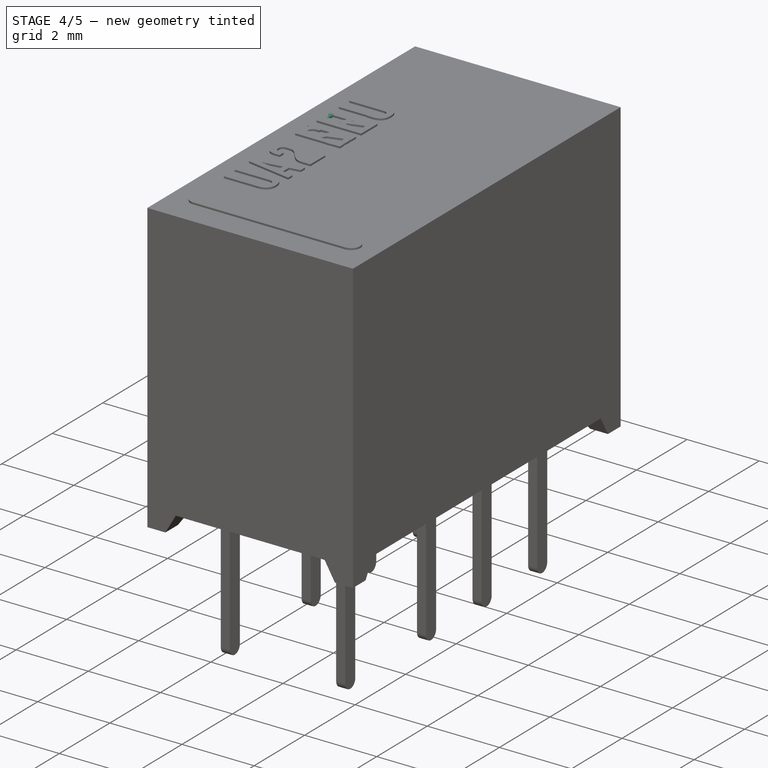
[diagram: stage 4 of 5 — iso view after this stage's code; geometry added in this stage tinted green]
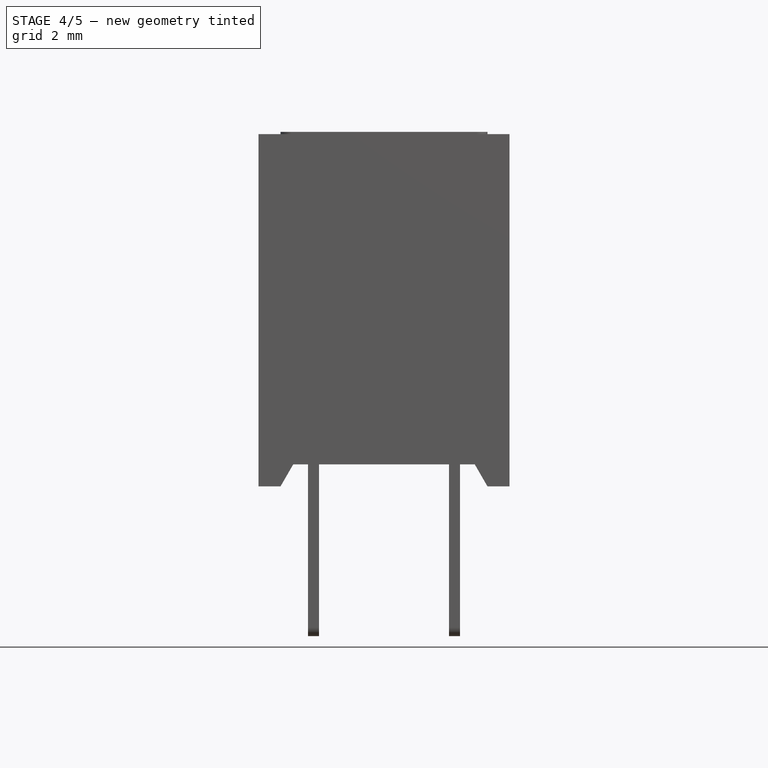
[diagram: stage 4 of 5 — front view after this stage's code; geometry added in this stage tinted green]
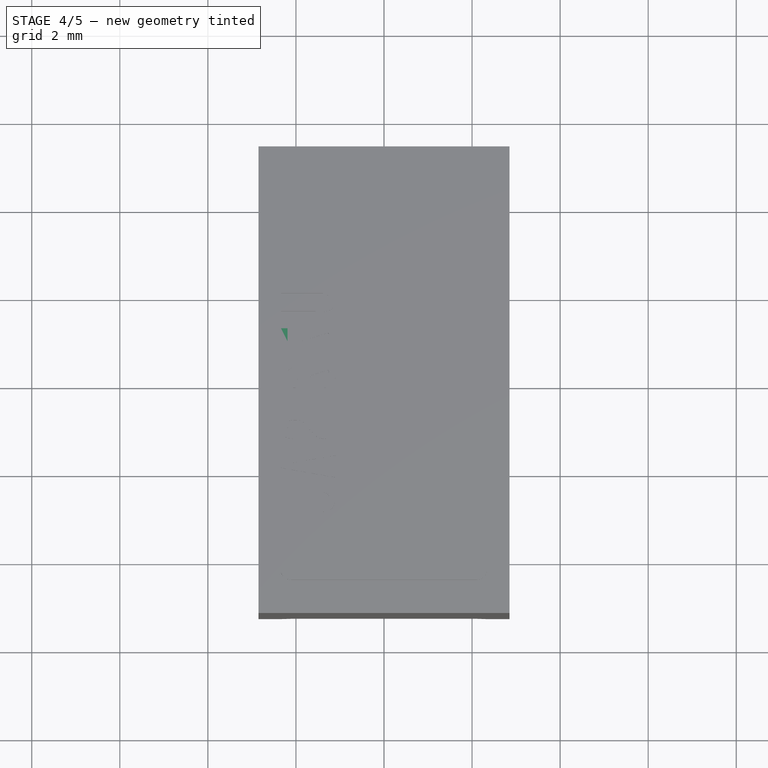
[diagram: stage 4 of 5 — top view after this stage's code; geometry added in this stage tinted green]
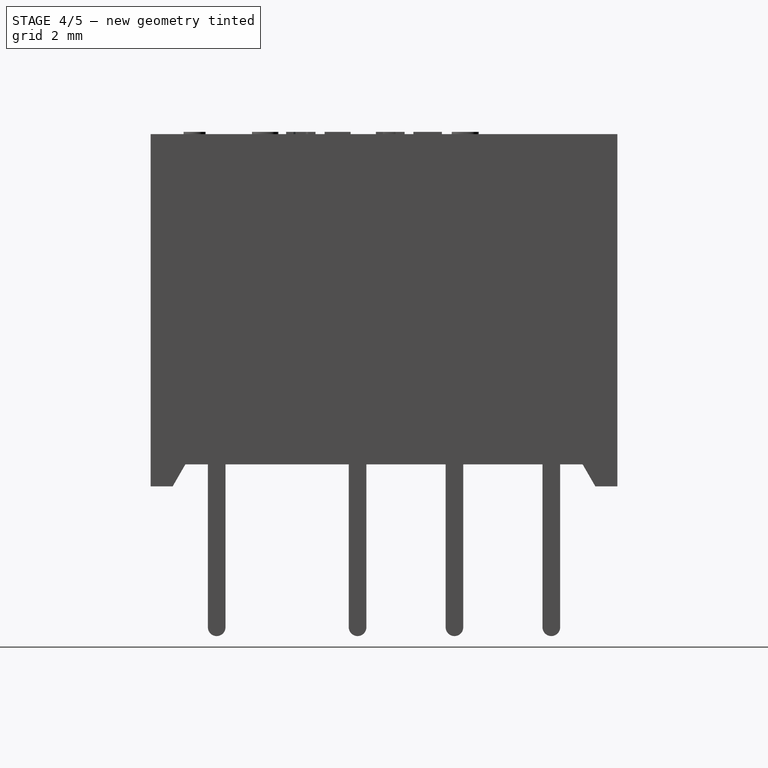
[diagram: stage 4 of 5 — right view after this stage's code; geometry added in this stage tinted green]
FEATURE [App::Part] Part  label="UA2-NU"
  Group = -> [Body,Sketch009,Pad005,Body001,Body002,Body003,Body004,Array,Array001,Fusion]
  Origin = -> Origin001
FEATURE [PartDesign::Mirrored] Mirrored002
  MirrorPlane = -> YZ_Plane007
FEATURE [PartDesign::Mirrored] Mirrored003
  MirrorPlane = -> XZ_Plane009
FEATURE [Sketcher::SketchObject] Sketch023
  MapMode = 5
  Support = -> [XY_Plane009]
  sketch-geometry (4):
    g0: LineSegment StartX=2.85 StartY=-5.3 StartZ=0 EndX=-2.85 EndY=-5.3 EndZ=0
    g1: LineSegment StartX=-2.85 StartY=-5.3 StartZ=0 EndX=-2.85 EndY=5.3 EndZ=0
    g2: LineSegment StartX=-2.85 StartY=5.3 StartZ=0 EndX=2.85 EndY=5.3 EndZ=0
    g3: LineSegment StartX=2.85 StartY=5.3 StartZ=0 EndX=2.85 EndY=-5.3 EndZ=0
  constraints (10):
    c: Coincident(g0,g1)
    c: Coincident(g1,g2)
    c: Coincident(g2,g3)
    c: Coincident(g3,g0)
    c: Horizontal(g0)
    c: Vertical(g1)
    c: Symmetric(g1,g2,g-2)
    c: Symmetric(g2,g0,g-1)
    c: DistanceX(g2,g2) = 5.7
    c: DistanceY(g3,g3) = 10.6
FEATURE [PartDesign::Pad] Pad013  label="MainPad001"
  Length = 8
  Length2 = 100
  Profile = -> Sketch023
  Type = 0
FEATURE [Sketcher::SketchObject] Sketch024
  ExternalGeometry = -> [Pad013]
  MapMode = 5
  Placement = pos=(-2.85,0,0) rot=(0.57735,-0.57735,-0.57735;2.0944rad)
  Support = -> [Pad013]
  sketch-geometry (4):
    g0: LineSegment StartX=-4.8 StartY=0 StartZ=0 EndX=-4.51132 EndY=0.5 EndZ=0
    g1: LineSegment StartX=-4.51132 StartY=0.5 StartZ=0 EndX=4.51132 EndY=0.5 EndZ=0
    g2: LineSegment StartX=4.51132 StartY=0.5 StartZ=0 EndX=4.8 EndY=0 EndZ=0
    g3: LineSegment StartX=-4.8 StartY=0 StartZ=0 EndX=4.8 EndY=0 EndZ=0
  constraints (11):
    c: PointOnObject(g0,g-1)
    c: Coincident(g0,g1)
    c: Horizontal(g1)
    c: Coincident(g1,g2)
    c: Coincident(g3,g0)
    c: Coincident(g3,g2)
    c: DistanceY(g0,g0) = 0.5
    c: DistanceX(g-3,g0) = 0.5
    c: Symmetric(g2,g0,g-2)
    c: Angle(g3,g0) = 1.0472
    c: Equal(g2,g0)
FEATURE [PartDesign::Pocket] Pocket008  label="BottomPocket001"
  BaseFeature = -> Pad013
  Length = 5
  Length2 = 100
  Profile = -> Sketch024
  Refine = true
  Type = 1
FEATURE [Sketcher::SketchObject] Sketch019
  ExternalGeometry = -> [Pocket008]
  MapMode = 5
  Placement = pos=(0,-5.3,0) rot=(1,0,0;1.5708rad)
  Support = -> [Pocket008]
  sketch-geometry (4):
    g0: LineSegment StartX=-2.35 StartY=0 StartZ=0 EndX=-2.06132 EndY=0.5 EndZ=0
    g1: LineSegment StartX=-2.06132 StartY=0.5 StartZ=0 EndX=2.06132 EndY=0.5 EndZ=0
    g2: LineSegment StartX=2.06132 StartY=0.5 StartZ=0 EndX=2.35 EndY=0 EndZ=0
    g3: LineSegment StartX=2.35 StartY=0 StartZ=0 EndX=-2.35 EndY=0 EndZ=0
  constraints (11):
    c: PointOnObject(g0,g-1)
    c: Coincident(g0,g1)
    c: Coincident(g1,g2)
    c: Coincident(g2,g3)
    c: Coincident(g3,g0)
    c: Symmetric(g1,g0,g-2)
    c: Symmetric(g0,g2,g-2)
    c: DistanceX(g-3,g0) = 0.5
    c: Angle(g3,g0) = 1.0472
    c: Equal(g2,g0)
    c: DistanceY(g0,g0) = 0.5
FEATURE [PartDesign::Pocket] Pocket009  label="BottomSidePocket001"
  BaseFeature = -> Pocket008
  Length = 5
  Length2 = 100
  Profile = -> Sketch019
  Refine = true
  Type = 1
FEATURE [Sketcher::SketchObject] Sketch022
  ExternalGeometry = -> [Pocket009,Sketch019]
  MapMode = 5
  Placement = pos=(0,0,0.5) rot=(1,0,0;3.14159rad)
  Support = -> [Pocket009]
  sketch-geometry (6):
    g0: LineSegment StartX=0 StartY=0 StartZ=0 EndX=-2.65 EndY=0 EndZ=0
    g1: LineSegment StartX=-2.65 StartY=0 StartZ=0 EndX=-2.65 EndY=4.31132 EndZ=0
    g2: LineSegment StartX=-2.65 StartY=4.31132 StartZ=0 EndX=-1.86132 EndY=4.31132 EndZ=0
    g3: LineSegment StartX=-1.86132 StartY=4.31132 StartZ=0 EndX=-1.86132 EndY=5.1 EndZ=0
    g4: LineSegment StartX=-1.86132 StartY=5.1 StartZ=0 EndX=0 EndY=5.1 EndZ=0
    g5: LineSegment StartX=0 StartY=5.1 StartZ=0 EndX=0 EndY=0 EndZ=0
  constraints (17):
    c: Horizontal(g0)
    c: Coincident(g0,g1)
    c: Vertical(g1)
    c: Coincident(g1,g2)
    c: Coincident(g2,g3)
    c: Vertical(g3)
    c: Coincident(g3,g4)
    c: Horizontal(g4)
    c: Coincident(g4,g5)
    c: Coincident(g5,g0)
    c: Vertical(g5)
    c: Horizontal(g2)
    c: Coincident(g0,g-1)
    c: DistanceX(g-4,g0) = 0.2
    c: DistanceY(g4,g-6) = 0.2
    c: DistanceX(g-5,g3) = 0.2
    c: DistanceY(g1,g-4) = 0.2
FEATURE [PartDesign::Pocket] Pocket007
  BaseFeature = -> Pocket009
  Length = 0.1
  Length2 = 100
  Profile = -> Sketch022
  Type = 0
FEATURE [PartDesign::MultiTransform] MultiTransform001
  BaseFeature = -> Pocket007
  Originals = -> [Pocket007]
  Refine = true
  Transformations = -> [Mirrored002,Mirrored003]
FEATURE [Sketcher::SketchObject] Sketch020
  MapMode = 5
  Placement = pos=(-1e-16,-1e-16,0.6) rot=(1,0,0;3.14159rad)
  Support = -> [MultiTransform001]
  sketch-geometry (8):
    g0: LineSegment StartX=-1.13646 StartY=2.94894 StartZ=0 EndX=1.09204 EndY=2.88853 EndZ=0
    g1: LineSegment StartX=1.48768 StartY=2.48729 StartZ=0 EndX=1.5531 EndY=-2.52307 EndZ=0
    g2: LineSegment StartX=1.14644 StartY=-2.93509 StartZ=0 EndX=-1.14748 EndY=-2.93509 EndZ=0
    g3: LineSegment StartX=-1.55418 StartY=-2.52838 StartZ=0 EndX=-1.55418 EndY=2.54239 EndZ=0
    g4: ArcOfCircle CenterX=1.08102 CenterY=2.48198 CenterZ=0 NormalX=0 NormalY=0 NormalZ=1 AngleXU=0 Radius=0.406703 StartAngle=0.013056 EndAngle=1.54369
    g5: ArcOfCircle CenterX=-1.14748 CenterY=2.54239 CenterZ=0 NormalX=0 NormalY=0 NormalZ=1 AngleXU=0 Radius=0.406703 StartAngle=1.54369 EndAngle=3.14159
    g6: ArcOfCircle CenterX=-1.14748 CenterY=-2.52838 CenterZ=0 NormalX=0 NormalY=0 NormalZ=1 AngleXU=0 Radius=0.406703 StartAngle=3.14159 EndAngle=4.71239
    g7: ArcOfCircle CenterX=1.14644 CenterY=-2.52838 CenterZ=0 NormalX=0 NormalY=0 NormalZ=1 AngleXU=0 Radius=0.406703 StartAngle=4.71239 EndAngle=6.29624
  constraints (13):
    c: Horizontal(g2)
    c: Vertical(g3)
    c: Tangent(g0,g4) = 1.5708
    c: Tangent(g1,g4) = 1.5708
    c: Tangent(g0,g5) = 1.5708
    c: Tangent(g3,g5) = 1.5708
    c: Tangent(g2,g6) = 1.5708
    c: Tangent(g3,g6) = 1.5708
    c: Tangent(g1,g7) = 1.5708
    c: Tangent(g2,g7) = 1.5708
    c: Equal(g4,g5)
    c: Equal(g5,g6)
    c: Equal(g6,g7)
FEATURE [PartDesign::Pad] Pad017
  BaseFeature = -> MultiTransform001
  Length = 0.05
  Length2 = 100
  Profile = -> Sketch020
  Type = 0
FEATURE [Sketcher::SketchObject] Sketch021
  ExternalGeometry = -> [Pad017]
  MapMode = 5
  Placement = pos=(0,0,8) rot=(0,0,1;0rad)
  Support = -> [Pad017]
  sketch-geometry (4):
    g0: ArcOfCircle CenterX=-2.1 CenterY=-4.3 CenterZ=0 NormalX=0 NormalY=0 NormalZ=1 AngleXU=0 Radius=0.25 StartAngle=1.5708 EndAngle=4.71239
    g1: ArcOfCircle CenterX=2.1 CenterY=-4.3 CenterZ=0 NormalX=0 NormalY=0 NormalZ=1 AngleXU=0 Radius=0.25 StartAngle=4.71239 EndAngle=7.85398
    g2: LineSegment StartX=-2.1 StartY=-4.55 StartZ=0 EndX=2.1 EndY=-4.55 EndZ=0
    g3: LineSegment StartX=-2.1 StartY=-4.05 StartZ=0 EndX=2.1 EndY=-4.05 EndZ=0
  constraints (9):
    c: Tangent(g0,g3) = 1.5708
    c: Tangent(g0,g2) = -1.5708
    c: Tangent(g2,g1) = -1.5708
    c: Tangent(g3,g1) = 1.5708
    c: Horizontal(g2)
    c: Symmetric(g0,g1,g-2)
    c: DistanceY(g1,g1) = 0.5
    c: DistanceY(g-3,g1) = 1
    c: DistanceX(g1,g-3) = 0.75
FEATURE [PartDesign::Pad] Pad016
  BaseFeature = -> Pad017
  Length = 0.05
  Length2 = 100
  Profile = -> Sketch021
  Type = 0
FEATURE [Part::Part2DObjectPython] ShapeString001  # Draft 2D object (typed FeaturePython)
  AttachmentOffset = pos=(-1,-1,0) rot=(0,0,1;-1.5708rad)
  FontFile = <userpath>/Desktop/GitHub/freecad-projects/00-fonts/coolvetica condensed rg.ttf
  MapMode = 6
  Placement = pos=(-1.1,-3.05,8) rot=(0,0,-1;4.71239rad)
  Size = 0.75
  String = UA2 NE
  Support = -> [Pad016]
  Tracking = 0.125
FEATURE [PartDesign::Pad] Pad015  label="ShapeStringPad001"
  BaseFeature = -> Pad016
  Length = 0.05
  Length2 = 100
  Profile = -> ShapeString001
  Type = 0
FEATURE [PartDesign::Body] Body008  label="UA2-NE_Body"
  Group = -> [Sketch023,Pad013,Sketch024,Pocket008,Sketch019,Pocket009,ShapeString001,Sketch022,Pocket007,MultiTransform001,Mirrored002,Mirrored003,Sketch020,Pad017,Sketch021,Pad016,Pad015]
  Origin = -> Origin011
  Tip = -> Pad016
FEATURE [Sketcher::SketchObject] Sketch025
  AttachmentOffset = pos=(0,0,2.54) rot=(0,0,1;0rad)
  MapMode = 5
  Placement = pos=(1.6,-1e-15,1e-15) rot=(0.57735,0.57735,0.57735;2.0944rad)
  sketch-geometry (6):
    g0: ArcOfCircle CenterX=0 CenterY=-3.2 CenterZ=0 NormalX=0 NormalY=0 NormalZ=1 AngleXU=0 Radius=0.2 StartAngle=3.14159 EndAngle=6.28319
    g1: LineSegment StartX=-0.2 StartY=-3.2 StartZ=0 EndX=-0.2 EndY=0.5 EndZ=0
    g2: LineSegment StartX=-0.2 StartY=0.5 StartZ=0 EndX=0.2 EndY=0.5 EndZ=0
    g3: LineSegment StartX=0.2 StartY=0.5 StartZ=0 EndX=0.2 EndY=-3.2 EndZ=0
    g4: GeomPoint X=-0.2 Y=0 Z=0
    g5: GeomPoint X=0 Y=-3.4 Z=0
  constraints (16):
    c: Tangent(g0,g1) = 1.5708
    c: Coincident(g1,g2)
    c: Coincident(g2,g3)
    c: Coincident(g3,g0)
    c: Vertical(g3)
    c: Equal(g3,g1)
    c: Vertical(g1)
    c: Horizontal(g2)
    c: PointOnObject(g4,g1)
    c: PointOnObject(g4,g-1)
    c: DistanceY(g4,g1) = 0.5
    c: DistanceX(g0,g0) = 0.4
    c: PointOnObject(g5,g0)
    c: Vertical(g5,g0)
    c: DistanceY(g5,g-1) = 3.4
    c: PointOnObject(g0,g-2)
FEATURE [PartDesign::Pad] Pad014
  Length = 0.25
  Length2 = 100
  Midplane = true
  Placement = pos=(1.6,-1e-15,1e-15) rot=(0.57735,0.57735,0.57735;2.0944rad)
  Profile = -> Sketch025
  Reversed = true
  Type = 0
FEATURE [PartDesign::FeatureBase] Clone007
  BaseFeature = -> Pad014
  Placement = pos=(1.6,-1e-15,1e-15) rot=(0.57735,0.57735,0.57735;2.0944rad)
FEATURE [PartDesign::Body] Body007
  BaseFeature = -> Pad014
  Group = -> [Clone007]
  Origin = -> Origin008
  Placement = pos=(0,-3.8,0) rot=(0,0,1;0rad)
  Tip = -> Clone007
FEATURE [PartDesign::FeatureBase] Clone004
  BaseFeature = -> Body007
  Placement = pos=(0,-3.8,0) rot=(0,0,1;0rad)
FEATURE [PartDesign::FeatureBase] Clone005
  BaseFeature = -> Body007
  Placement = pos=(0,-3.8,0) rot=(0,0,1;0rad)
FEATURE [PartDesign::Body] Body006
  Group = -> [Clone004]
  Origin = -> Origin006
  Placement = pos=(0,3.2,0) rot=(0,0,1;0rad)
  Tip = -> Clone004
FEATURE [PartDesign::Body] Body009
  Group = -> [Clone005]
  Origin = -> Origin007
  Placement = pos=(-3.2,0,0) rot=(0,0,1;0rad)
  Tip = -> Clone005
FEATURE [Part::FeaturePython] Array002  # Draft array (typed FeaturePython)
  Angle = 360
  ArrayType = 0
  Axis = (0,0,1)
  Base = -> Body006
  Center = (0,0,0)
  Fuse = false
  IntervalAxis = (0,0,0)
  IntervalX = (1,0,0)
  IntervalY = (0,2.2,0)
  IntervalZ = (0,0,1)
  NumberPolar = 1
  NumberX = 1
  NumberY = 3
  NumberZ = 1
FEATURE [PartDesign::FeatureBase] Clone006
  BaseFeature = -> Body009
  Placement = pos=(-3.2,0,0) rot=(0,0,1;0rad)
FEATURE [PartDesign::Body] Body005
  BaseFeature = -> Body009
  Group = -> [Clone006]
  Origin = -> Origin009
  Placement = pos=(0,3.2,0) rot=(0,0,1;0rad)
  Tip = -> Clone006
FEATURE [Part::FeaturePython] Array003  # Draft array (typed FeaturePython)
  Angle = 360
  ArrayType = 0
  Axis = (0,0,1)
  Base = -> Body005
  Center = (0,0,0)
  Fuse = false
  IntervalAxis = (0,0,0)
  IntervalX = (1,0,0)
  IntervalY = (0,2.2,0)
  IntervalZ = (0,0,1)
  NumberPolar = 1
  NumberX = 1
  NumberY = 3
  NumberZ = 1
FEATURE [Part::MultiFuse] Fusion001  label="UA2-NE_Pads"
  Shapes = -> [Array002,Array003,Body007,Body009]
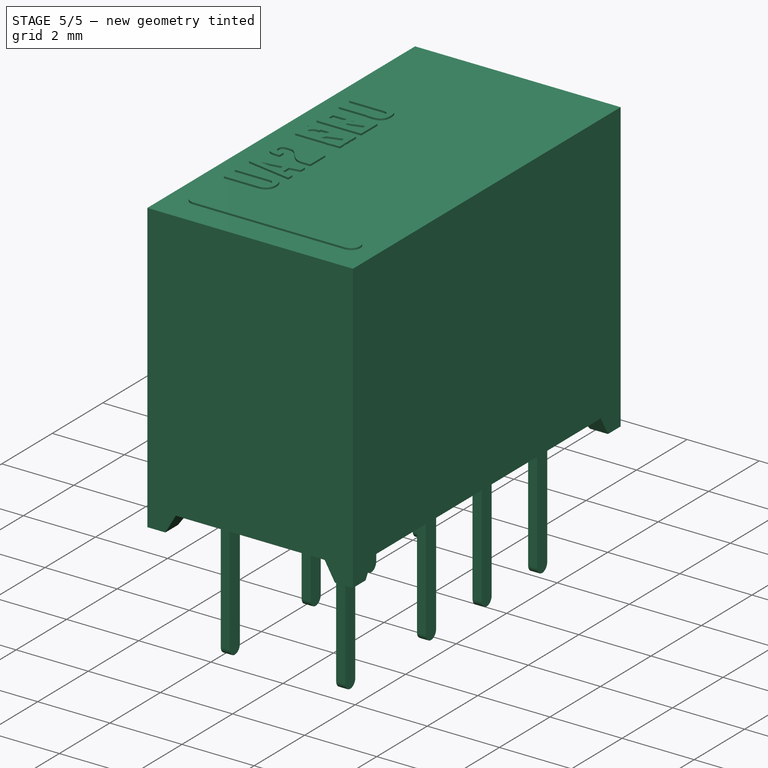
[diagram: stage 5 of 5 — iso view after this stage's code; geometry added in this stage tinted green]
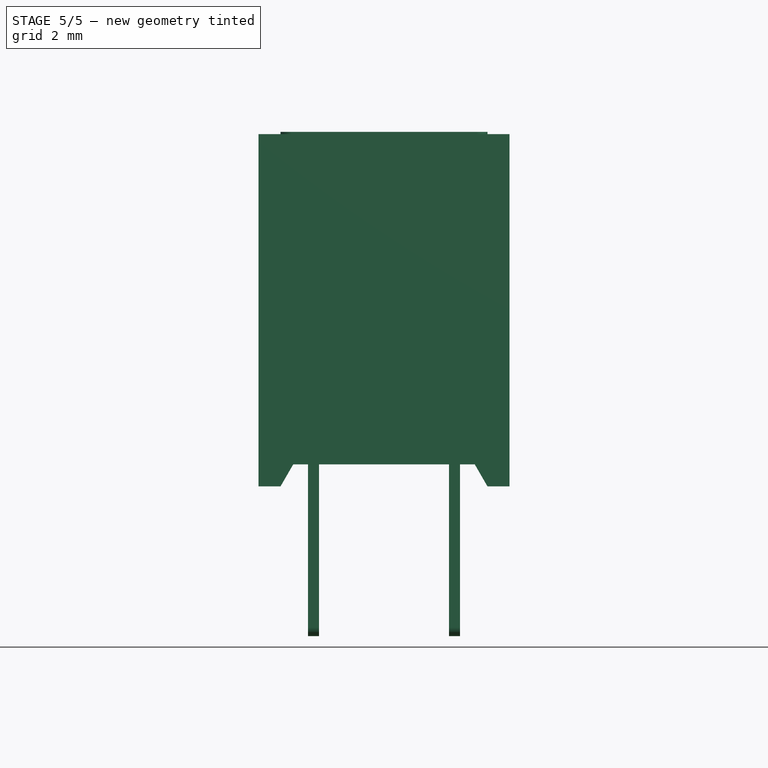
[diagram: stage 5 of 5 — front view after this stage's code; geometry added in this stage tinted green]
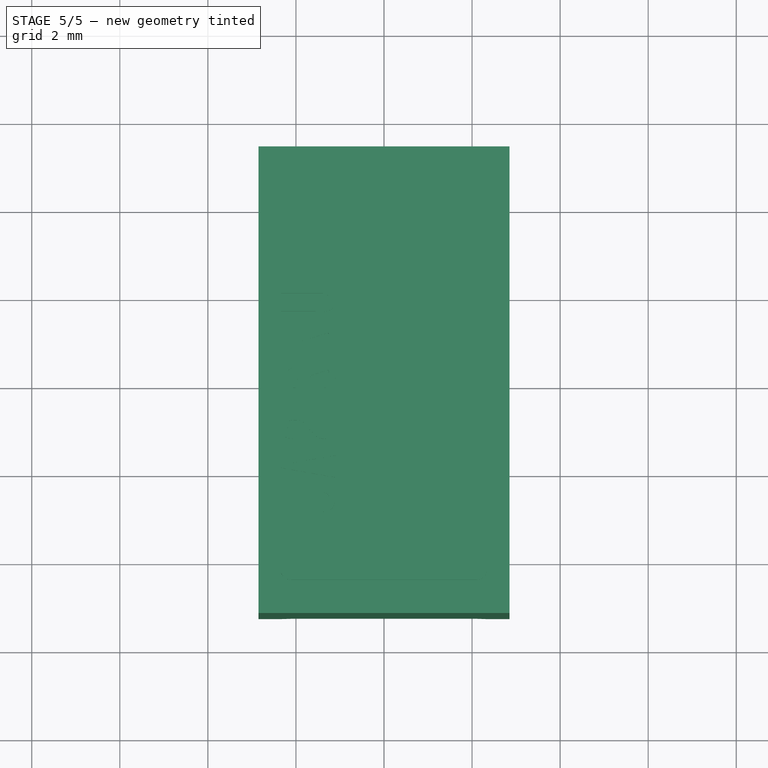
[diagram: stage 5 of 5 — top view after this stage's code; geometry added in this stage tinted green]
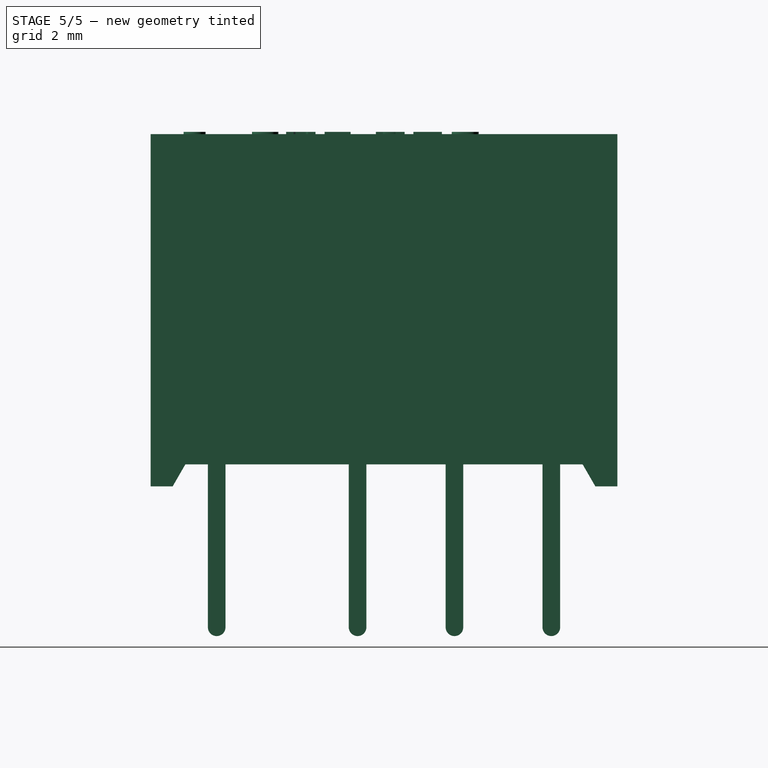
[diagram: stage 5 of 5 — right view after this stage's code; geometry added in this stage tinted green]
FEATURE [Sketcher::SketchObject] Sketch
  MapMode = 5
  Support = -> [XY_Plane]
  sketch-geometry (4):
    g0: LineSegment StartX=2.85 StartY=-5.3 StartZ=0 EndX=-2.85 EndY=-5.3 EndZ=0
    g1: LineSegment StartX=-2.85 StartY=-5.3 StartZ=0 EndX=-2.85 EndY=5.3 EndZ=0
    g2: LineSegment StartX=-2.85 StartY=5.3 StartZ=0 EndX=2.85 EndY=5.3 EndZ=0
    g3: LineSegment StartX=2.85 StartY=5.3 StartZ=0 EndX=2.85 EndY=-5.3 EndZ=0
  constraints (10):
    c: Coincident(g0,g1)
    c: Coincident(g1,g2)
    c: Coincident(g2,g3)
    c: Coincident(g3,g0)
    c: Horizontal(g0)
    c: Vertical(g1)
    c: Symmetric(g1,g2,g-2)
    c: Symmetric(g2,g0,g-1)
    c: DistanceX(g2,g2) = 5.7
    c: DistanceY(g3,g3) = 10.6
FEATURE [PartDesign::Pad] Pad  label="MainPad"
  Length = 8
  Length2 = 100
  Profile = -> Sketch
  Type = 0
FEATURE [Sketcher::SketchObject] Sketch003
  ExternalGeometry = -> [Pad]
  MapMode = 5
  Placement = pos=(-2.85,0,0) rot=(0.57735,-0.57735,-0.57735;2.0944rad)
  Support = -> [Pad]
  sketch-geometry (4):
    g0: LineSegment StartX=-4.8 StartY=0 StartZ=0 EndX=-4.51132 EndY=0.5 EndZ=0
    g1: LineSegment StartX=-4.51132 StartY=0.5 StartZ=0 EndX=4.51132 EndY=0.5 EndZ=0
    g2: LineSegment StartX=4.51132 StartY=0.5 StartZ=0 EndX=4.8 EndY=0 EndZ=0
    g3: LineSegment StartX=-4.8 StartY=0 StartZ=0 EndX=4.8 EndY=0 EndZ=0
  constraints (11):
    c: PointOnObject(g0,g-1)
    c: Coincident(g0,g1)
    c: Horizontal(g1)
    c: Coincident(g1,g2)
    c: Coincident(g3,g0)
    c: Coincident(g3,g2)
    c: DistanceY(g0,g0) = 0.5
    c: DistanceX(g-3,g0) = 0.5
    c: Symmetric(g2,g0,g-2)
    c: Angle(g3,g0) = 1.0472
    c: Equal(g2,g0)
FEATURE [PartDesign::Pocket] Pocket  label="BottomPocket"
  BaseFeature = -> Pad
  Length = 5
  Length2 = 100
  Profile = -> Sketch003
  Refine = true
  Type = 1
FEATURE [Sketcher::SketchObject] Sketch009
  AttachmentOffset = pos=(0,0,2.54) rot=(0,0,1;0rad)
  MapMode = 5
  Placement = pos=(1.6,-1e-15,1e-15) rot=(0.57735,0.57735,0.57735;2.0944rad)
  sketch-geometry (6):
    g0: ArcOfCircle CenterX=0 CenterY=-3.2 CenterZ=0 NormalX=0 NormalY=0 NormalZ=1 AngleXU=0 Radius=0.2 StartAngle=3.14159 EndAngle=6.28319
    g1: LineSegment StartX=-0.2 StartY=-3.2 StartZ=0 EndX=-0.2 EndY=0.5 EndZ=0
    g2: LineSegment StartX=-0.2 StartY=0.5 StartZ=0 EndX=0.2 EndY=0.5 EndZ=0
    g3: LineSegment StartX=0.2 StartY=0.5 StartZ=0 EndX=0.2 EndY=-3.2 EndZ=0
    g4: GeomPoint X=-0.2 Y=0 Z=0
    g5: GeomPoint X=0 Y=-3.4 Z=0
  constraints (16):
    c: Tangent(g0,g1) = 1.5708
    c: Coincident(g1,g2)
    c: Coincident(g2,g3)
    c: Coincident(g3,g0)
    c: Vertical(g3)
    c: Equal(g3,g1)
    c: Vertical(g1)
    c: Horizontal(g2)
    c: PointOnObject(g4,g1)
    c: PointOnObject(g4,g-1)
    c: DistanceY(g4,g1) = 0.5
    c: DistanceX(g0,g0) = 0.4
    c: PointOnObject(g5,g0)
    c: Vertical(g5,g0)
    c: DistanceY(g5,g-1) = 3.4
    c: PointOnObject(g0,g-2)
FEATURE [PartDesign::Pad] Pad005
  Length = 0.25
  Length2 = 100
  Midplane = true
  Placement = pos=(1.6,-1e-15,1e-15) rot=(0.57735,0.57735,0.57735;2.0944rad)
  Profile = -> Sketch009
  Reversed = true
  Type = 0
FEATURE [Sketcher::SketchObject] Sketch015
  ExternalGeometry = -> [Pocket]
  MapMode = 5
  Placement = pos=(0,-5.3,0) rot=(1,0,0;1.5708rad)
  Support = -> [Pocket]
  sketch-geometry (4):
    g0: LineSegment StartX=-2.35 StartY=0 StartZ=0 EndX=-2.06132 EndY=0.5 EndZ=0
    g1: LineSegment StartX=-2.06132 StartY=0.5 StartZ=0 EndX=2.06132 EndY=0.5 EndZ=0
    g2: LineSegment StartX=2.06132 StartY=0.5 StartZ=0 EndX=2.35 EndY=0 EndZ=0
    g3: LineSegment StartX=2.35 StartY=0 StartZ=0 EndX=-2.35 EndY=0 EndZ=0
  constraints (11):
    c: PointOnObject(g0,g-1)
    c: Coincident(g0,g1)
    c: Coincident(g1,g2)
    c: Coincident(g2,g3)
    c: Coincident(g3,g0)
    c: Symmetric(g1,g0,g-2)
    c: Symmetric(g0,g2,g-2)
    c: DistanceX(g-3,g0) = 0.5
    c: Angle(g3,g0) = 1.0472
    c: Equal(g2,g0)
    c: DistanceY(g0,g0) = 0.5
FEATURE [PartDesign::Pocket] Pocket005  label="BottomSidePocket"
  BaseFeature = -> Pocket
  Length = 5
  Length2 = 100
  Profile = -> Sketch015
  Refine = true
  Type = 1
FEATURE [Sketcher::SketchObject] Sketch016
  ExternalGeometry = -> [Pocket005,Sketch015]
  MapMode = 5
  Placement = pos=(0,0,0.5) rot=(1,0,0;3.14159rad)
  Support = -> [Pocket005]
  sketch-geometry (6):
    g0: LineSegment StartX=0 StartY=0 StartZ=0 EndX=-2.65 EndY=0 EndZ=0
    g1: LineSegment StartX=-2.65 StartY=0 StartZ=0 EndX=-2.65 EndY=4.31132 EndZ=0
    g2: LineSegment StartX=-2.65 StartY=4.31132 StartZ=0 EndX=-1.86132 EndY=4.31132 EndZ=0
    g3: LineSegment StartX=-1.86132 StartY=4.31132 StartZ=0 EndX=-1.86132 EndY=5.1 EndZ=0
    g4: LineSegment StartX=-1.86132 StartY=5.1 StartZ=0 EndX=0 EndY=5.1 EndZ=0
    g5: LineSegment StartX=0 StartY=5.1 StartZ=0 EndX=0 EndY=0 EndZ=0
  constraints (17):
    c: Horizontal(g0)
    c: Coincident(g0,g1)
    c: Vertical(g1)
    c: Coincident(g1,g2)
    c: Coincident(g2,g3)
    c: Vertical(g3)
    c: Coincident(g3,g4)
    c: Horizontal(g4)
    c: Coincident(g4,g5)
    c: Coincident(g5,g0)
    c: Vertical(g5)
    c: Horizontal(g2)
    c: Coincident(g0,g-1)
    c: DistanceX(g-4,g0) = 0.2
    c: DistanceY(g4,g-6) = 0.2
    c: DistanceX(g-5,g3) = 0.2
    c: DistanceY(g1,g-4) = 0.2
FEATURE [PartDesign::Pocket] Pocket006
  BaseFeature = -> Pocket005
  Length = 0.1
  Length2 = 100
  Profile = -> Sketch016
  Type = 0
FEATURE [PartDesign::Mirrored] Mirrored
  MirrorPlane = -> YZ_Plane
FEATURE [PartDesign::Mirrored] Mirrored001
  MirrorPlane = -> XZ_Plane
FEATURE [PartDesign::MultiTransform] MultiTransform
  BaseFeature = -> Pocket006
  Originals = -> [Pocket006]
  Refine = true
  Transformations = -> [Mirrored,Mirrored001]
FEATURE [Sketcher::SketchObject] Sketch017
  MapMode = 5
  Placement = pos=(-1e-16,-1e-16,0.6) rot=(1,0,0;3.14159rad)
  Support = -> [MultiTransform]
  sketch-geometry (8):
    g0: LineSegment StartX=-1.13646 StartY=2.94894 StartZ=0 EndX=1.09204 EndY=2.88853 EndZ=0
    g1: LineSegment StartX=1.48768 StartY=2.48729 StartZ=0 EndX=1.5531 EndY=-2.52307 EndZ=0
    g2: LineSegment StartX=1.14644 StartY=-2.93509 StartZ=0 EndX=-1.14748 EndY=-2.93509 EndZ=0
    g3: LineSegment StartX=-1.55418 StartY=-2.52838 StartZ=0 EndX=-1.55418 EndY=2.54239 EndZ=0
    g4: ArcOfCircle CenterX=1.08102 CenterY=2.48198 CenterZ=0 NormalX=0 NormalY=0 NormalZ=1 AngleXU=0 Radius=0.406703 StartAngle=0.013056 EndAngle=1.54369
    g5: ArcOfCircle CenterX=-1.14748 CenterY=2.54239 CenterZ=0 NormalX=0 NormalY=0 NormalZ=1 AngleXU=0 Radius=0.406703 StartAngle=1.54369 EndAngle=3.14159
    g6: ArcOfCircle CenterX=-1.14748 CenterY=-2.52838 CenterZ=0 NormalX=0 NormalY=0 NormalZ=1 AngleXU=0 Radius=0.406703 StartAngle=3.14159 EndAngle=4.71239
    g7: ArcOfCircle CenterX=1.14644 CenterY=-2.52838 CenterZ=0 NormalX=0 NormalY=0 NormalZ=1 AngleXU=0 Radius=0.406703 StartAngle=4.71239 EndAngle=6.29624
  constraints (13):
    c: Horizontal(g2)
    c: Vertical(g3)
    c: Tangent(g0,g4) = 1.5708
    c: Tangent(g1,g4) = 1.5708
    c: Tangent(g0,g5) = 1.5708
    c: Tangent(g3,g5) = 1.5708
    c: Tangent(g2,g6) = 1.5708
    c: Tangent(g3,g6) = 1.5708
    c: Tangent(g1,g7) = 1.5708
    c: Tangent(g2,g7) = 1.5708
    c: Equal(g4,g5)
    c: Equal(g5,g6)
    c: Equal(g6,g7)
FEATURE [PartDesign::Pad] Pad011
  BaseFeature = -> MultiTransform
  Length = 0.05
  Length2 = 100
  Profile = -> Sketch017
  Type = 0
FEATURE [Sketcher::SketchObject] Sketch018
  ExternalGeometry = -> [Pad011]
  MapMode = 5
  Placement = pos=(0,0,8) rot=(0,0,1;0rad)
  Support = -> [Pad011]
  sketch-geometry (4):
    g0: ArcOfCircle CenterX=-2.1 CenterY=-4.3 CenterZ=0 NormalX=0 NormalY=0 NormalZ=1 AngleXU=0 Radius=0.25 StartAngle=1.5708 EndAngle=4.71239
    g1: ArcOfCircle CenterX=2.1 CenterY=-4.3 CenterZ=0 NormalX=0 NormalY=0 NormalZ=1 AngleXU=0 Radius=0.25 StartAngle=4.71239 EndAngle=7.85398
    g2: LineSegment StartX=-2.1 StartY=-4.55 StartZ=0 EndX=2.1 EndY=-4.55 EndZ=0
    g3: LineSegment StartX=-2.1 StartY=-4.05 StartZ=0 EndX=2.1 EndY=-4.05 EndZ=0
  constraints (9):
    c: Tangent(g0,g3) = 1.5708
    c: Tangent(g0,g2) = -1.5708
    c: Tangent(g2,g1) = -1.5708
    c: Tangent(g3,g1) = 1.5708
    c: Horizontal(g2)
    c: Symmetric(g0,g1,g-2)
    c: DistanceY(g1,g1) = 0.5
    c: DistanceY(g-3,g1) = 1
    c: DistanceX(g1,g-3) = 0.75
FEATURE [PartDesign::Pad] Pad012
  BaseFeature = -> Pad011
  Length = 0.05
  Length2 = 100
  Profile = -> Sketch018
  Type = 0
FEATURE [Part::Part2DObjectPython] ShapeString  # Draft 2D object (typed FeaturePython)
  AttachmentOffset = pos=(-1,-1,0) rot=(0,0,1;-1.5708rad)
  FontFile = <userpath>/Desktop/GitHub/freecad-projects/00-fonts/coolvetica condensed rg.ttf
  MapMode = 6
  Placement = pos=(-1.1,-3.05,8) rot=(0,0,-1;4.71239rad)
  Size = 0.75
  String = UA2 NU
  Support = -> [Pad012]
  Tracking = 0.125
FEATURE [PartDesign::Pad] Pad007  label="ShapeStringPad"
  BaseFeature = -> Pad012
  Length = 0.05
  Length2 = 100
  Profile = -> ShapeString
  Type = 0
FEATURE [PartDesign::Body] Body  label="UA2-NU_Body"
  Group = -> [Sketch,Pad,Sketch003,Pocket,Sketch015,Pocket005,ShapeString,Sketch016,Pocket006,MultiTransform,Mirrored,Mirrored001,Sketch017,Pad011,Sketch018,Pad012,Pad007]
  Origin = -> Origin
  Tip = -> Pad012
FEATURE [PartDesign::FeatureBase] Clone
  BaseFeature = -> Pad005
  Placement = pos=(1.6,-1e-15,1e-15) rot=(0.57735,0.57735,0.57735;2.0944rad)
FEATURE [PartDesign::Body] Body001
  BaseFeature = -> Pad005
  Group = -> [Clone]
  Origin = -> Origin002
  Placement = pos=(0,-3.8,0) rot=(0,0,1;0rad)
  Tip = -> Clone
FEATURE [PartDesign::FeatureBase] Clone001
  BaseFeature = -> Body001
  Placement = pos=(0,-3.8,0) rot=(0,0,1;0rad)
FEATURE [PartDesign::Body] Body002
  BaseFeature = -> Body001
  Group = -> [Clone001]
  Origin = -> Origin003
  Placement = pos=(-3.2,0,0) rot=(0,0,1;0rad)
  Tip = -> Clone001
FEATURE [PartDesign::FeatureBase] Clone002
  BaseFeature = -> Body001
  Placement = pos=(0,-3.8,0) rot=(0,0,1;0rad)
FEATURE [PartDesign::Body] Body003
  BaseFeature = -> Body001
  Group = -> [Clone002]
  Origin = -> Origin004
  Placement = pos=(0,3.2,0) rot=(0,0,1;0rad)
  Tip = -> Clone002
FEATURE [PartDesign::FeatureBase] Clone003
  BaseFeature = -> Body002
  Placement = pos=(-3.2,0,0) rot=(0,0,1;0rad)
FEATURE [PartDesign::Body] Body004
  BaseFeature = -> Body002
  Group = -> [Clone003]
  Origin = -> Origin005
  Placement = pos=(0,3.2,0) rot=(0,0,1;0rad)
  Tip = -> Clone003
FEATURE [Part::FeaturePython] Array  # Draft array (typed FeaturePython)
  Angle = 360
  ArrayType = 0
  Axis = (0,0,1)
  Base = -> Body003
  Center = (0,0,0)
  Fuse = false
  IntervalAxis = (0,0,0)
  IntervalX = (1,0,0)
  IntervalY = (0,2.2,0)
  IntervalZ = (0,0,1)
  NumberPolar = 1
  NumberX = 1
  NumberY = 3
  NumberZ = 1
FEATURE [Part::FeaturePython] Array001  # Draft array (typed FeaturePython)
  Angle = 360
  ArrayType = 0
  Axis = (0,0,1)
  Base = -> Body004
  Center = (0,0,0)
  Fuse = false
  IntervalAxis = (0,0,0)
  IntervalX = (1,0,0)
  IntervalY = (0,2.2,0)
  IntervalZ = (0,0,1)
  NumberPolar = 1
  NumberX = 1
  NumberY = 3
  NumberZ = 1
FEATURE [Part::MultiFuse] Fusion  label="UA2-NU_Pads"
  Shapes = -> [Array,Array001,Body001,Body002]
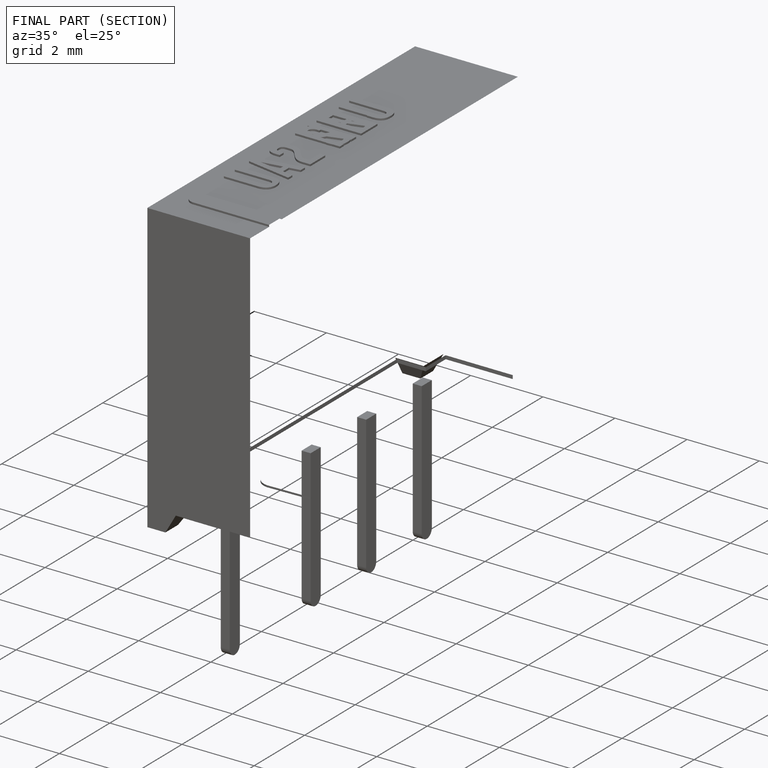
[diagram: finished part — half-section view (interior)]
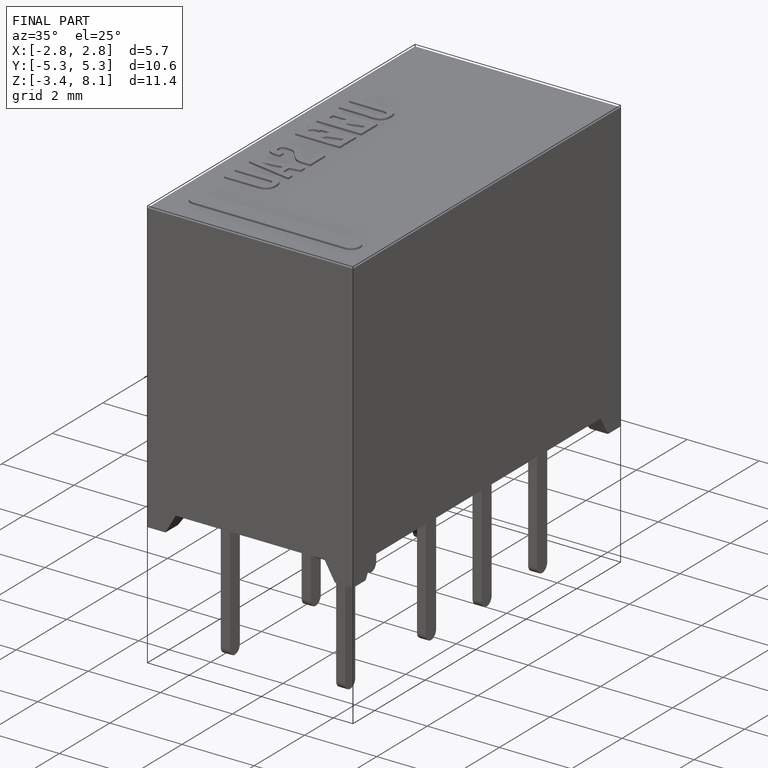
[diagram: finished part — iso view with bounding-box wireframe]
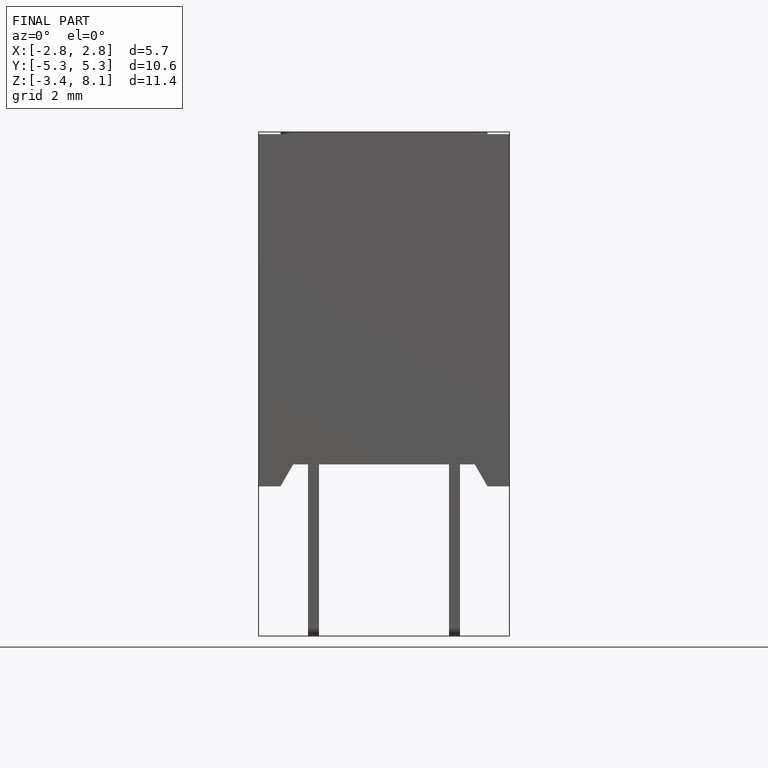
[diagram: finished part — front view with bounding-box wireframe]
